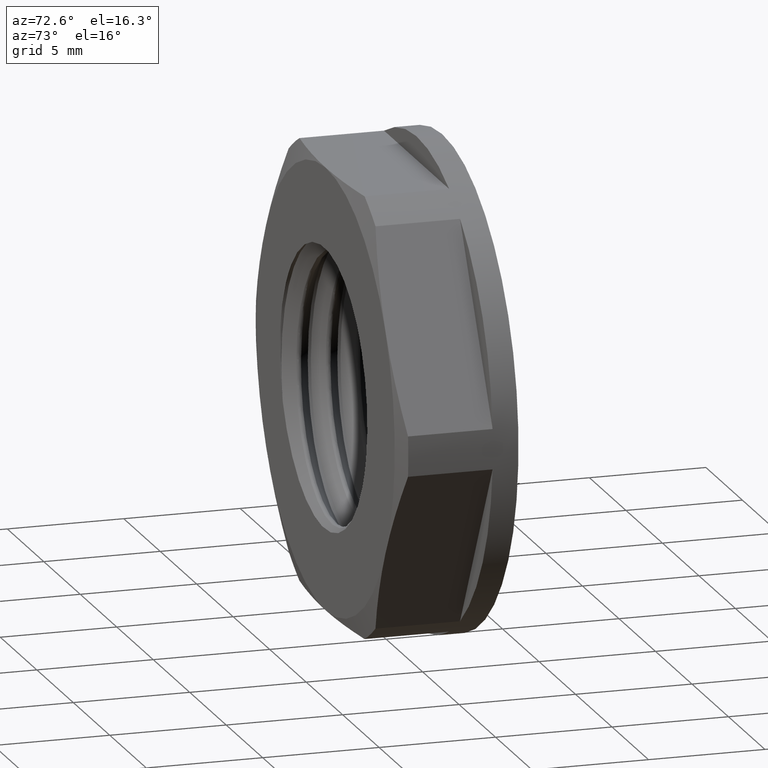
[diagram: clean part render]
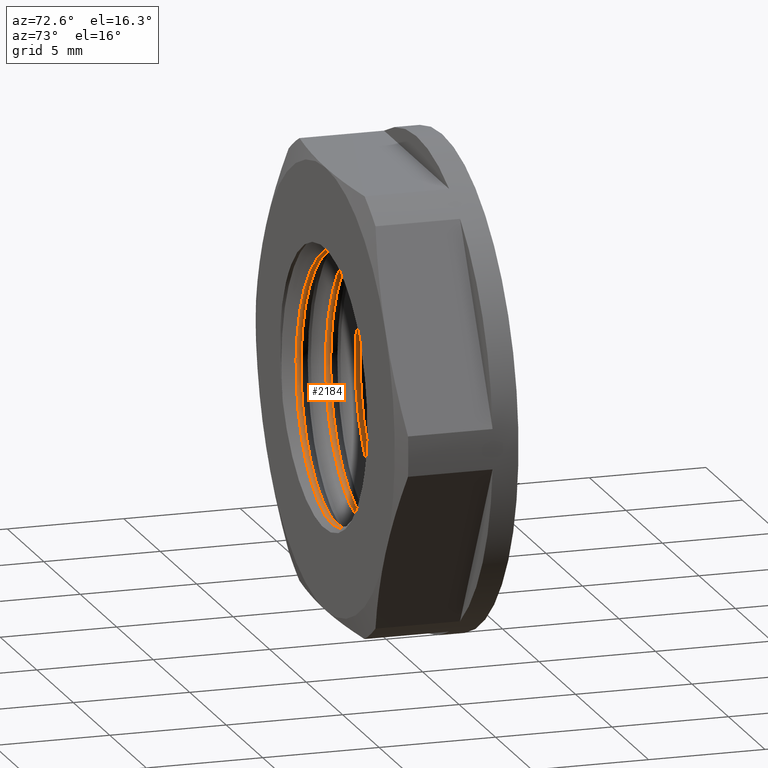
[diagram: same view with one face highlighted and labeled with its STEP entity id]
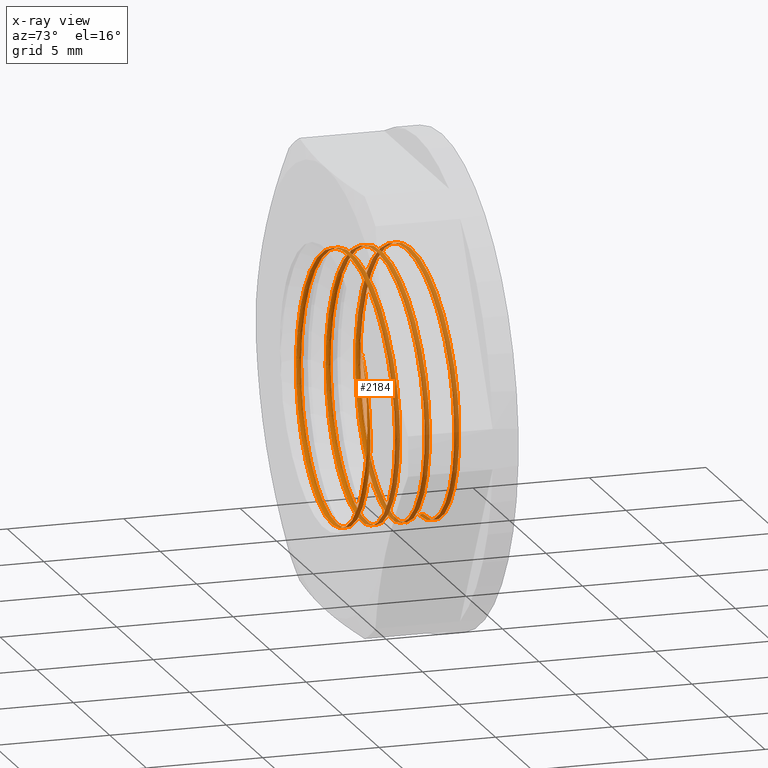
[diagram: x-ray of the same camera — body ghosted, the highlighted face saturated]
A machine part, auxiliary view. The second image highlights one B-rep face of the part: STEP entity #2184.
The next image is the same camera in x-ray: the body ghosted, the highlighted face saturated — about 57% of this face is hidden behind the body in this view.
In plain terms, the highlighted face is a freeform B-spline surface patch.
Its self-contained STEP definition (entity closure, byte-faithful):
#7 = CARTESIAN_POINT ( 'NONE',  ( 6.941444292451469532E-16, 3.319334072139365155, 5.668119409844843304 ) ) ;
#16 = CARTESIAN_POINT ( 'NONE',  ( -5.668119409844837975, 0.5412090721393689741, 2.347811932707918992 ) ) ;
#18 = CARTESIAN_POINT ( 'NONE',  ( 2.377589880243087261, 2.282878371188592492, 5.740009734643887640 ) ) ;
#29 = CARTESIAN_POINT ( 'NONE',  ( -4.007965671276383368, 0.6205840721393671711, 4.007965671276383368 ) ) ;
#31 = CARTESIAN_POINT ( 'NONE',  ( -5.017655903764298486, -0.5509438449104669955, 2.787622819756260917 ) ) ;
#33 = CARTESIAN_POINT ( 'NONE',  ( 5.149680798113544178, 2.410000000000000142, 2.537130995959368640 ) ) ;
#40 = CARTESIAN_POINT ( 'NONE',  ( -2.347811932707918992, -0.5700409278606315411, 5.668119409844845968 ) ) ;
#44 = CARTESIAN_POINT ( 'NONE',  ( 5.740009734643887640, 1.330378371188590148, -2.377589880243087261 ) ) ;
#49 = CARTESIAN_POINT ( 'NONE',  ( 5.740009734643887640, -0.1541140728847225083, -2.377589880243087261 ) ) ;
#52 = CARTESIAN_POINT ( 'NONE',  ( -2.347811932707918992, 1.969959072139367606, 5.668119409844845968 ) ) ;
#56 = CARTESIAN_POINT ( 'NONE',  ( 5.740009734643890305, 2.521003371188590414, -3.514742274303144908E-16 ) ) ;
#63 = CARTESIAN_POINT ( 'NONE',  ( -4.058799807443485008, 4.370260927115279692, 4.058799807443490337 ) ) ;
#67 = CARTESIAN_POINT ( 'NONE',  ( 0.0000000000000000000, 0.2985033711885889951, -5.740009734643890305 ) ) ;
#68 = CARTESIAN_POINT ( 'NONE',  ( 5.608852697494989492, 2.409999999999997922, 1.096897368471707601 ) ) ;
#72 = CARTESIAN_POINT ( 'NONE',  ( -4.058799807443490337, 4.052760927115279799, -4.058799807443485008 ) ) ;
#75 = CARTESIAN_POINT ( 'NONE',  ( -4.007965671276383368, 5.794430226164501541, 4.007965671276383368 ) ) ;
#82 = CARTESIAN_POINT ( 'NONE',  ( 5.740009734643887640, 0.9571359271152788395, 2.377589880243087261 ) ) ;
#85 = CARTESIAN_POINT ( 'NONE',  ( -2.347811932707918992, 2.063805226164497686, 5.668119409844845968 ) ) ;
#86 = CARTESIAN_POINT ( 'NONE',  ( 4.058799807443485008, 3.949753371188589490, -4.058799807443490337 ) ) ;
#93 =( BOUNDED_SURFACE ( )  B_SPLINE_SURFACE ( 3, 2, ( 
 ( #2214, #1321, #795, #178, #858, #1669, #692, #1369, #1204, #1659, #1887, #128, #482, #634, #1633, #1837, #102, #314, #781, #1468, #987, #2150, #290, #114, #1480, #1310, #2047, #166, #848, #1996, #472, #683, #1358, #522, #1192, #736, #1720, #1218, #1036, #228, #392, #1254, #914, #1756, #216, #702, #369, #892, #1921, #1731, #2079, #190, #56, #867, #557, #18, #1382, #1421, #1574, #1900, #747, #2103, #381, #903, #1059, #1083, #579, #44, #1048, #1432, #1933, #203, #1586, #1744, #1766, #413, #712, #241, #724, #1597, #67, #879, #2068, #2113, #1407, #1396, #589, #1550, #1265, #1563, #1231, #401, #31 ),
 ( #544, #1911, #2090, #566, #1070, #1240, #441, #107, #296, #800, #75, #1463, #617, #250, #464, #2122, #2154, #1486, #640, #1987, #1472, #787, #1135, #1123, #1820, #970, #777, #927, #1274, #1653, #1303, #1094, #1779, #1946, #629, #1974, #1788, #1103, #423, #118, #259, #281, #1797, #937, #2165, #1606, #450, #757, #1441, #598, #609, #1956, #1114, #1284, #1617, #432, #2143, #85, #272, #766, #1452, #1292, #2132, #1964, #947, #1628, #97, #1807, #959, #1638, #811, #475, #990, #677, #2001, #150, #1693, #1147, #2178, #1831, #1178, #1335, #2210, #1871, #508, #1166, #1663, #1315, #1850, #667, #486, #821, #307 ),
 ( #979, #130, #161, #1496, #831, #648, #1683, #1325, #174, #2012, #1157, #1517, #1839, #350, #2043, #316, #1673, #139, #327, #1507, #1000, #1345, #518, #2199, #2187, #2031, #1860, #656, #2021, #1021, #495, #854, #339, #1010, #841, #1527, #1354, #1187, #1705, #1536, #7, #530, #553, #1237, #688, #1416, #1226, #2054, #237, #876, #1593, #1895, #1392, #888, #1739, #710, #1365, #52, #1250, #186, #410, #2099, #1080, #1763, #1929, #1716, #1214, #2077, #1559, #1199, #378, #1907, #398, #1569, #29, #16, #213, #910, #900, #388, #1883, #576, #1045, #365, #700, #1055, #1033, #865, #1729, #40, #1548, #721, #1402 ),
 ( #2085, #1378, #2065, #542, #563, #200, #1917, #1067, #1752, #1583, #225, #733, #606, #1289, #1120, #1091, #1111, #956, #1773, #1636, #626, #461, #784, #1985, #1280, #269, #63, #744, #1794, #1301, #72, #586, #256, #1943, #2119, #1470, #104, #774, #2152, #1133, #1818, #933, #293, #1449, #1614, #1952, #968, #944, #1429, #2128, #2110, #1261, #1625, #420, #247, #923, #595, #1603, #1804, #763, #94, #754, #1438, #428, #1271, #1100, #1460, #447, #1784, #82, #1961, #2138, #437, #614, #1971, #278, #798, #1650, #116, #1483, #2163, #637, #407, #49, #1279, #730, #1772, #1247, #1926, #436, #2118, #233, #1970 ) ),
 .UNSPECIFIED., .F., .F., .F. ) 
 B_SPLINE_SURFACE_WITH_KNOTS ( ( 4, 4 ),
 ( 3, 2, 2, 2, 2, 2, 2, 2, 2, 2, 2, 2, 2, 2, 2, 2, 2, 2, 2, 2, 2, 2, 2, 2, 2, 2, 2, 2, 2, 2, 2, 2, 2, 2, 2, 2, 2, 2, 2, 2, 2, 2, 2, 2, 2, 2, 3 ),
 ( 0.0000000000000000000, 1.000000000000000000 ),
 ( 0.0000000000000000000, 0.02083333333333334952, 0.04166666666666665048, 0.06250000000000000000, 0.08333333333333330095, 0.1041666666666666019, 0.1250000000000000000, 0.1458333333333333981, 0.1666666666666665186, 0.1875000000000000000, 0.2083333333333335091, 0.2291666666666664909, 0.2500000000000000000, 0.2708333333333335369, 0.2916666666666665186, 0.3125000000000000000, 0.3333333333333335369, 0.3541666666666665186, 0.3750000000000000000, 0.3958333333333335369, 0.4166666666666665186, 0.4375000000000000000, 0.4583333333333329818, 0.4791666666666670182, 0.5000000000000000000, 0.5208333333333330373, 0.5416666666666670737, 0.5625000000000000000, 0.5833333333333330373, 0.6041666666666670737, 0.6250000000000000000, 0.6458333333333330373, 0.6666666666666670737, 0.6875000000000000000, 0.7083333333333330373, 0.7291666666666670737, 0.7500000000000000000, 0.7708333333333330373, 0.7916666666666670737, 0.8125000000000000000, 0.8333333333333330373, 0.8541666666666670737, 0.8750000000000000000, 0.8958333333333330373, 0.9166666666666670737, 0.9375000000000000000, 0.9449178093676989798 ),
 .UNSPECIFIED. ) 
 GEOMETRIC_REPRESENTATION_ITEM ( )  RATIONAL_B_SPLINE_SURFACE ( (
 ( 1.000000000000000000, 0.9238795325112869605, 1.000000000000000000, 0.9238795325112869605, 1.000000000000000000, 0.9238795325112869605, 1.000000000000000000, 0.9238795325112869605, 1.000000000000000000, 0.9238795325112869605, 1.000000000000000000, 0.9238795325112869605, 1.000000000000000000, 0.9238795325112869605, 1.000000000000000000, 0.9238795325112869605, 1.000000000000000000, 0.9238795325112869605, 1.000000000000000000, 0.9238795325112869605, 1.000000000000000000, 0.9238795325112869605, 1.000000000000000000, 0.9238795325112869605, 1.000000000000000000, 0.9238795325112869605, 1.000000000000000000, 0.9238795325112869605, 1.000000000000000000, 0.9238795325112869605, 1.000000000000000000, 0.9238795325112869605, 1.000000000000000000, 0.9238795325112869605, 1.000000000000000000, 0.9238795325112869605, 1.000000000000000000, 0.9238795325112869605, 1.000000000000000000, 0.9238795325112869605, 1.000000000000000000, 0.9238795325112869605, 1.000000000000000000, 0.9238795325112869605, 1.000000000000000000, 0.9238795325112869605, 1.000000000000000000, 0.9238795325112869605, 1.000000000000000000, 0.9238795325112869605, 1.000000000000000000, 0.9238795325112869605, 1.000000000000000000, 0.9238795325112869605, 1.000000000000000000, 0.9238795325112869605, 1.000000000000000000, 0.9238795325112869605, 1.000000000000000000, 0.9238795325112869605, 1.000000000000000000, 0.9238795325112869605, 1.000000000000000000, 0.9238795325112869605, 1.000000000000000000, 0.9238795325112869605, 1.000000000000000000, 0.9238795325112869605, 1.000000000000000000, 0.9238795325112869605, 1.000000000000000000, 0.9238795325112869605, 1.000000000000000000, 0.9238795325112869605, 1.000000000000000000, 0.9238795325112869605, 1.000000000000000000, 0.9238795325112869605, 1.000000000000000000, 0.9238795325112869605, 1.000000000000000000, 0.9238795325112869605, 1.000000000000000000, 0.9238795325112869605, 1.000000000000000000, 0.9238795325112869605, 1.000000000000000000, 0.9238795325112869605, 1.000000000000000000, 0.9238795325112869605, 1.000000000000000000, 0.9728969383930510251, 0.9650942298371130157),
 ( 0.7618584064576909842, 0.7038653883979260062, 0.7618584064576909842, 0.7038653883979260062, 0.7618584064576909842, 0.7038653883979260062, 0.7618584064576909842, 0.7038653883979260062, 0.7618584064576909842, 0.7038653883979260062, 0.7618584064576909842, 0.7038653883979260062, 0.7618584064576909842, 0.7038653883979260062, 0.7618584064576909842, 0.7038653883979260062, 0.7618584064576909842, 0.7038653883979260062, 0.7618584064576909842, 0.7038653883979260062, 0.7618584064576909842, 0.7038653883979260062, 0.7618584064576909842, 0.7038653883979260062, 0.7618584064576909842, 0.7038653883979260062, 0.7618584064576909842, 0.7038653883979260062, 0.7618584064576909842, 0.7038653883979260062, 0.7618584064576909842, 0.7038653883979260062, 0.7618584064576909842, 0.7038653883979260062, 0.7618584064576909842, 0.7038653883979260062, 0.7618584064576909842, 0.7038653883979260062, 0.7618584064576909842, 0.7038653883979260062, 0.7618584064576909842, 0.7038653883979260062, 0.7618584064576909842, 0.7038653883979260062, 0.7618584064576909842, 0.7038653883979260062, 0.7618584064576909842, 0.7038653883979260062, 0.7618584064576909842, 0.7038653883979260062, 0.7618584064576909842, 0.7038653883979260062, 0.7618584064576909842, 0.7038653883979260062, 0.7618584064576909842, 0.7038653883979260062, 0.7618584064576909842, 0.7038653883979260062, 0.7618584064576909842, 0.7038653883979260062, 0.7618584064576909842, 0.7038653883979260062, 0.7618584064576909842, 0.7038653883979260062, 0.7618584064576909842, 0.7038653883979260062, 0.7618584064576909842, 0.7038653883979260062, 0.7618584064576909842, 0.7038653883979260062, 0.7618584064576909842, 0.7038653883979260062, 0.7618584064576909842, 0.7038653883979260062, 0.7618584064576909842, 0.7038653883979260062, 0.7618584064576909842, 0.7038653883979260062, 0.7618584064576909842, 0.7038653883979260062, 0.7618584064576909842, 0.7038653883979260062, 0.7618584064576909842, 0.7038653883979260062, 0.7618584064576909842, 0.7038653883979260062, 0.7618584064576909842, 0.7038653883979260062, 0.7618584064576909842, 0.7038653883979260062, 0.7618584064576909842, 0.7412097111316969800, 0.7352651520252160289),
 ( 0.7618584064576909842, 0.7038653883979260062, 0.7618584064576909842, 0.7038653883979260062, 0.7618584064576909842, 0.7038653883979260062, 0.7618584064576909842, 0.7038653883979260062, 0.7618584064576909842, 0.7038653883979260062, 0.7618584064576909842, 0.7038653883979260062, 0.7618584064576909842, 0.7038653883979260062, 0.7618584064576909842, 0.7038653883979260062, 0.7618584064576909842, 0.7038653883979260062, 0.7618584064576909842, 0.7038653883979260062, 0.7618584064576909842, 0.7038653883979260062, 0.7618584064576909842, 0.7038653883979260062, 0.7618584064576909842, 0.7038653883979260062, 0.7618584064576909842, 0.7038653883979260062, 0.7618584064576909842, 0.7038653883979260062, 0.7618584064576909842, 0.7038653883979260062, 0.7618584064576909842, 0.7038653883979260062, 0.7618584064576909842, 0.7038653883979260062, 0.7618584064576909842, 0.7038653883979260062, 0.7618584064576909842, 0.7038653883979260062, 0.7618584064576909842, 0.7038653883979260062, 0.7618584064576909842, 0.7038653883979260062, 0.7618584064576909842, 0.7038653883979260062, 0.7618584064576909842, 0.7038653883979260062, 0.7618584064576909842, 0.7038653883979260062, 0.7618584064576909842, 0.7038653883979260062, 0.7618584064576909842, 0.7038653883979260062, 0.7618584064576909842, 0.7038653883979260062, 0.7618584064576909842, 0.7038653883979260062, 0.7618584064576909842, 0.7038653883979260062, 0.7618584064576909842, 0.7038653883979260062, 0.7618584064576909842, 0.7038653883979260062, 0.7618584064576909842, 0.7038653883979260062, 0.7618584064576909842, 0.7038653883979260062, 0.7618584064576909842, 0.7038653883979260062, 0.7618584064576909842, 0.7038653883979260062, 0.7618584064576909842, 0.7038653883979260062, 0.7618584064576909842, 0.7038653883979260062, 0.7618584064576909842, 0.7038653883979260062, 0.7618584064576909842, 0.7038653883979260062, 0.7618584064576909842, 0.7038653883979260062, 0.7618584064576909842, 0.7038653883979260062, 0.7618584064576909842, 0.7038653883979260062, 0.7618584064576909842, 0.7038653883979260062, 0.7618584064576909842, 0.7038653883979260062, 0.7618584064576909842, 0.7412097111316969800, 0.7352651520252160289),
 ( 1.000000000000000000, 0.9238795325112869605, 1.000000000000000000, 0.9238795325112869605, 1.000000000000000000, 0.9238795325112869605, 1.000000000000000000, 0.9238795325112869605, 1.000000000000000000, 0.9238795325112869605, 1.000000000000000000, 0.9238795325112869605, 1.000000000000000000, 0.9238795325112869605, 1.000000000000000000, 0.9238795325112869605, 1.000000000000000000, 0.9238795325112869605, 1.000000000000000000, 0.9238795325112869605, 1.000000000000000000, 0.9238795325112869605, 1.000000000000000000, 0.9238795325112869605, 1.000000000000000000, 0.9238795325112869605, 1.000000000000000000, 0.9238795325112869605, 1.000000000000000000, 0.9238795325112869605, 1.000000000000000000, 0.9238795325112869605, 1.000000000000000000, 0.9238795325112869605, 1.000000000000000000, 0.9238795325112869605, 1.000000000000000000, 0.9238795325112869605, 1.000000000000000000, 0.9238795325112869605, 1.000000000000000000, 0.9238795325112869605, 1.000000000000000000, 0.9238795325112869605, 1.000000000000000000, 0.9238795325112869605, 1.000000000000000000, 0.9238795325112869605, 1.000000000000000000, 0.9238795325112869605, 1.000000000000000000, 0.9238795325112869605, 1.000000000000000000, 0.9238795325112869605, 1.000000000000000000, 0.9238795325112869605, 1.000000000000000000, 0.9238795325112869605, 1.000000000000000000, 0.9238795325112869605, 1.000000000000000000, 0.9238795325112869605, 1.000000000000000000, 0.9238795325112869605, 1.000000000000000000, 0.9238795325112869605, 1.000000000000000000, 0.9238795325112869605, 1.000000000000000000, 0.9238795325112869605, 1.000000000000000000, 0.9238795325112869605, 1.000000000000000000, 0.9238795325112869605, 1.000000000000000000, 0.9238795325112869605, 1.000000000000000000, 0.9238795325112869605, 1.000000000000000000, 0.9238795325112869605, 1.000000000000000000, 0.9238795325112869605, 1.000000000000000000, 0.9238795325112869605, 1.000000000000000000, 0.9238795325112869605, 1.000000000000000000, 0.9238795325112869605, 1.000000000000000000, 0.9238795325112869605, 1.000000000000000000, 0.9728969383930510251, 0.9650942298371130157) ) ) 
 REPRESENTATION_ITEM ( '' )  SURFACE ( )  );
#94 = CARTESIAN_POINT ( 'NONE',  ( -5.740009734643890305, 1.671510927115279932, 1.054422682290941796E-15 ) ) ;
#97 = CARTESIAN_POINT ( 'NONE',  ( 4.007965671276383368, 1.349430226164503255, -4.007965671276383368 ) ) ;
#98 = CARTESIAN_POINT ( 'NONE',  ( 4.058799807443490337, 6.172253371188590521, 4.058799807443485008 ) ) ;
#102 = CARTESIAN_POINT ( 'NONE',  ( 0.0000000000000000000, 5.378503371188590343, -5.740009734643890305 ) ) ;
#104 = CARTESIAN_POINT ( 'NONE',  ( 5.740009734643890305, 3.576510927115275074, -3.514742274303144908E-16 ) ) ;
#107 = CARTESIAN_POINT ( 'NONE',  ( 2.347811932707918992, 6.032555226164493689, 5.668119409844837975 ) ) ;
#109 = CARTESIAN_POINT ( 'NONE',  ( -2.377589880243087261, 3.394128371188589899, 5.740009734643887640 ) ) ;
#112 = CARTESIAN_POINT ( 'NONE',  ( 4.058799807443485008, 6.275260927115279941, -4.058799807443490337 ) ) ;
#114 = CARTESIAN_POINT ( 'NONE',  ( 2.377589880243087261, 4.822878371188587643, 5.740009734643887640 ) ) ;
#116 = CARTESIAN_POINT ( 'NONE',  ( -4.058799807443490337, 0.2427609271152769976, -4.058799807443485008 ) ) ;
#118 = CARTESIAN_POINT ( 'NONE',  ( 2.347811932707918992, 3.492555226164497206, 5.668119409844837975 ) ) ;
#126 = CARTESIAN_POINT ( 'NONE',  ( 5.740009734643887640, 4.925885927115277951, -2.377589880243087261 ) ) ;
#128 = CARTESIAN_POINT ( 'NONE',  ( -5.740009734643887640, 5.775378371188589099, 2.377589880243092590 ) ) ;
#130 = CARTESIAN_POINT ( 'NONE',  ( 2.347811932707918992, 6.414959072139360785, -5.668119409844837975 ) ) ;
#132 = CARTESIAN_POINT ( 'NONE',  ( 5.740009734643887640, 3.870378371188589295, -2.377589880243087261 ) ) ;
#139 = CARTESIAN_POINT ( 'NONE',  ( 2.347811932707918992, 5.144959072139361211, -5.668119409844837975 ) ) ;
#143 = CARTESIAN_POINT ( 'NONE',  ( -5.740009734643890305, 4.211510927115274860, 1.054422682290941796E-15 ) ) ;
#150 = CARTESIAN_POINT ( 'NONE',  ( -5.668119409844837975, 0.6350552261645027174, 2.347811932707918992 ) ) ;
#161 = CARTESIAN_POINT ( 'NONE',  ( 4.007965671276383368, 6.335584072139369916, -4.007965671276383368 ) ) ;
#166 = CARTESIAN_POINT ( 'NONE',  ( -5.740009734643887640, 4.505378371188593079, 2.377589880243092590 ) ) ;
#174 = CARTESIAN_POINT ( 'NONE',  ( 6.941444292451469532E-16, 5.859334072139371408, 5.668119409844843304 ) ) ;
#178 = CARTESIAN_POINT ( 'NONE',  ( 5.740009734643887640, 6.410378371188589774, -2.377589880243087261 ) ) ;
#186 = CARTESIAN_POINT ( 'NONE',  ( -5.668119409844837975, 1.811209072139363219, 2.347811932707918992 ) ) ;
#190 = CARTESIAN_POINT ( 'NONE',  ( 5.740009734643887640, 2.600378371188594162, -2.377589880243087261 ) ) ;
#200 = CARTESIAN_POINT ( 'NONE',  ( 5.740009734643887640, 6.037135927115281575, 2.377589880243087261 ) ) ;
#203 = CARTESIAN_POINT ( 'NONE',  ( 2.377589880243087261, 1.012878371188590920, 5.740009734643887640 ) ) ;
#213 = CARTESIAN_POINT ( 'NONE',  ( -5.668119409844843304, 0.4618340721393676684, 1.041216643867720726E-15 ) ) ;
#216 = CARTESIAN_POINT ( 'NONE',  ( -5.740009734643890305, 3.156003371188589757, 1.054422682290941796E-15 ) ) ;
#217 = CARTESIAN_POINT ( 'NONE',  ( 5.226818545764534640, 2.410000000000036557, -2.340424639353290814 ) ) ;
#225 = CARTESIAN_POINT ( 'NONE',  ( -4.058799807443485008, 5.640260927115280154, 4.058799807443490337 ) ) ;
#228 = CARTESIAN_POINT ( 'NONE',  ( 2.377589880243087261, 3.552878371188588069, 5.740009734643887640 ) ) ;
#233 = CARTESIAN_POINT ( 'NONE',  ( -4.627243380244770776, -0.7365770113605215608, 3.490356234642217004 ) ) ;
#237 = CARTESIAN_POINT ( 'NONE',  ( 0.0000000000000000000, 2.684334072139369809, -5.668119409844843304 ) ) ;
#241 = CARTESIAN_POINT ( 'NONE',  ( -5.740009734643887640, 0.5366283711885923013, -2.377589880243087261 ) ) ;
#247 = CARTESIAN_POINT ( 'NONE',  ( 4.058799807443490337, 2.147760927115275109, 4.058799807443485008 ) ) ;
#250 = CARTESIAN_POINT ( 'NONE',  ( -5.668119409844837975, 5.556305226164496958, -2.347811932707918992 ) ) ;
#256 = CARTESIAN_POINT ( 'NONE',  ( 0.0000000000000000000, 3.894010927115274967, -5.740009734643890305 ) ) ;
#259 = CARTESIAN_POINT ( 'NONE',  ( 6.941444292451469532E-16, 3.413180226164503672, 5.668119409844843304 ) ) ;
#261 = CARTESIAN_POINT ( 'NONE',  ( 7.029484548606289816E-16, 4.743503371188589668, 5.740009734643890305 ) ) ;
#262 = EDGE_CURVE ( 'NONE', #945, #270, #1935, .T. ) ;
#269 = CARTESIAN_POINT ( 'NONE',  ( -2.377589880243087261, 4.449635927115278555, 5.740009734643887640 ) ) ;
#270 = VERTEX_POINT ( 'NONE', #1737 ) ;
#272 = CARTESIAN_POINT ( 'NONE',  ( -4.007965671276383368, 1.984430226164504818, 4.007965671276383368 ) ) ;
#273 = CARTESIAN_POINT ( 'NONE',  ( -2.377589880243092590, 2.917878371188590503, -5.740009734643887640 ) ) ;
#278 = CARTESIAN_POINT ( 'NONE',  ( -5.740009734643887640, 0.4808859271152782222, 2.377589880243092590 ) ) ;
#281 = CARTESIAN_POINT ( 'NONE',  ( -2.347811932707918992, 3.333805226164497704, 5.668119409844845968 ) ) ;
#284 = CARTESIAN_POINT ( 'NONE',  ( 2.377589880243087261, 6.092878371188594322, 5.740009734643887640 ) ) ;
#290 = CARTESIAN_POINT ( 'NONE',  ( 4.058799807443490337, 4.902253371188590059, 4.058799807443485008 ) ) ;
#293 = CARTESIAN_POINT ( 'NONE',  ( -4.058799807443485008, 3.100260927115280118, 4.058799807443490337 ) ) ;
#294 = ORIENTED_EDGE ( 'NONE', *, *, #1145, .F. ) ;
#296 = CARTESIAN_POINT ( 'NONE',  ( 6.941444292451469532E-16, 5.953180226164496602, 5.668119409844843304 ) ) ;
#298 = CARTESIAN_POINT ( 'NONE',  ( 5.740009734643890305, 5.061003371188589561, -3.514742274303144908E-16 ) ) ;
#300 = ORIENTED_EDGE ( 'NONE', *, *, #2010, .T. ) ;
#301 = CARTESIAN_POINT ( 'NONE',  ( -4.058799807443490337, 5.322760927115279372, -4.058799807443485008 ) ) ;
#307 = CARTESIAN_POINT ( 'NONE',  ( -4.954812645768705615, -0.6112669899345551938, 2.752709445181304559 ) ) ;
#309 = CARTESIAN_POINT ( 'NONE',  ( 4.058799807443490337, 4.902253371188590059, 4.058799807443485008 ) ) ;
#310 = CARTESIAN_POINT ( 'NONE',  ( 0.0000000000000000000, 6.648503371188589917, -5.740009734643890305 ) ) ;
#311 = CARTESIAN_POINT ( 'NONE',  ( -5.740009734643887640, 5.402135927115277347, -2.377589880243087261 ) ) ;
#314 = CARTESIAN_POINT ( 'NONE',  ( 2.377589880243087261, 5.299128371188589703, -5.740009734643887640 ) ) ;
#316 = CARTESIAN_POINT ( 'NONE',  ( -2.347811932707918992, 5.303709072139360714, -5.668119409844837975 ) ) ;
#322 = CARTESIAN_POINT ( 'NONE',  ( 0.0000000000000000000, 3.894010927115274967, -5.740009734643890305 ) ) ;
#327 = CARTESIAN_POINT ( 'NONE',  ( 4.007965671276383368, 5.065584072139367677, -4.007965671276383368 ) ) ;
#339 = CARTESIAN_POINT ( 'NONE',  ( 0.0000000000000000000, 3.954334072139366718, -5.668119409844843304 ) ) ;
#350 = CARTESIAN_POINT ( 'NONE',  ( -5.668119409844837975, 5.462459072139366434, -2.347811932707918992 ) ) ;
#365 = CARTESIAN_POINT ( 'NONE',  ( 5.668119409844837975, -0.09379092786063099318, -2.347811932707918992 ) ) ;
#368 = CARTESIAN_POINT ( 'NONE',  ( -4.058799807443490337, 2.782760927115279781, -4.058799807443485008 ) ) ;
#369 = CARTESIAN_POINT ( 'NONE',  ( -4.058799807443490337, 2.997253371188589810, -4.058799807443485008 ) ) ;
#378 = CARTESIAN_POINT ( 'NONE',  ( 4.007965671276383368, 0.9380840721393672865, 4.007965671276383368 ) ) ;
#381 = CARTESIAN_POINT ( 'NONE',  ( -4.058799807443490337, 1.727253371188590014, -4.058799807443485008 ) ) ;
#388 = CARTESIAN_POINT ( 'NONE',  ( -2.347811932707918992, 0.2237090721393652226, -5.668119409844837975 ) ) ;
#392 = CARTESIAN_POINT ( 'NONE',  ( 7.029484548606289816E-16, 3.473503371188590094, 5.740009734643890305 ) ) ;
#393 = CARTESIAN_POINT ( 'NONE',  ( 5.586060005029064079, 2.409999999999997922, -1.144609402685266009 ) ) ;
#398 = CARTESIAN_POINT ( 'NONE',  ( 6.941444292451469532E-16, 0.7793340721393678949, 5.668119409844843304 ) ) ;
#401 = CARTESIAN_POINT ( 'NONE',  ( -4.627243380244770776, -0.5220845672872085341, 3.490356234642217004 ) ) ;
#406 = CARTESIAN_POINT ( 'NONE',  ( 0.0000000000000000000, 6.434010927115280332, -5.740009734643890305 ) ) ;
#407 = CARTESIAN_POINT ( 'NONE',  ( 4.058799807443485008, -0.07473907288472329824, -4.058799807443490337 ) ) ;
#410 = CARTESIAN_POINT ( 'NONE',  ( -5.668119409844843304, 1.731834072139367020, 1.041216643867720726E-15 ) ) ;
#413 = CARTESIAN_POINT ( 'NONE',  ( -5.740009734643887640, 0.6953783711885913599, 2.377589880243092590 ) ) ;
#420 = CARTESIAN_POINT ( 'NONE',  ( 5.740009734643887640, 2.227135927115277969, 2.377589880243087261 ) ) ;
#423 = CARTESIAN_POINT ( 'NONE',  ( 4.007965671276383368, 3.571930226164499178, 4.007965671276383368 ) ) ;
#424 = CARTESIAN_POINT ( 'NONE',  ( 5.682242973111762296, 2.410000000000074305, -0.4001371344266840824 ) ) ;
#428 = CARTESIAN_POINT ( 'NONE',  ( -2.377589880243092590, 1.433385927115277125, -5.740009734643887640 ) ) ;
#432 = CARTESIAN_POINT ( 'NONE',  ( 2.347811932707918992, 2.222555226164498077, 5.668119409844837975 ) ) ;
#436 = CARTESIAN_POINT ( 'NONE',  ( -2.377589880243087261, -0.6303640728847234032, 5.740009734643887640 ) ) ;
#437 = CARTESIAN_POINT ( 'NONE',  ( 7.029484548606289816E-16, 0.7190109271152760329, 5.740009734643890305 ) ) ;
#441 = CARTESIAN_POINT ( 'NONE',  ( 4.007965671276383368, 6.111930226164498769, 4.007965671276383368 ) ) ;
#442 = CARTESIAN_POINT ( 'NONE',  ( 5.740009734643887640, 6.410378371188590663, -2.377589880243087261 ) ) ;
#447 = CARTESIAN_POINT ( 'NONE',  ( 5.740009734643887640, 1.115885927115279008, -2.377589880243087261 ) ) ;
#450 = CARTESIAN_POINT ( 'NONE',  ( -4.007965671276383368, 2.936930226164503832, -4.007965671276383368 ) ) ;
#455 = CARTESIAN_POINT ( 'NONE',  ( 4.058799807443485008, 5.005260927115279479, -4.058799807443490337 ) ) ;
#461 = CARTESIAN_POINT ( 'NONE',  ( 5.740009734643887640, 4.767135927115274008, 2.377589880243087261 ) ) ;
#464 = CARTESIAN_POINT ( 'NONE',  ( -4.007965671276383368, 5.476930226164503424, -4.007965671276383368 ) ) ;
#467 = CARTESIAN_POINT ( 'NONE',  ( 5.740009734643887640, 6.251628371188586719, 2.377589880243087261 ) ) ;
#469 = EDGE_LOOP ( 'NONE', ( #1664, #294, #887, #300 ) ) ;
#472 = CARTESIAN_POINT ( 'NONE',  ( -4.058799807443490337, 4.267253371188589384, -4.058799807443485008 ) ) ;
#475 = CARTESIAN_POINT ( 'NONE',  ( 2.347811932707918992, 0.9525552261645013896, 5.668119409844837975 ) ) ;
#477 = CARTESIAN_POINT ( 'NONE',  ( -4.058799807443485008, 5.854753371188589739, 4.058799807443490337 ) ) ;
#479 = CARTESIAN_POINT ( 'NONE',  ( -4.058799807443485008, 4.370260927115279692, 4.058799807443490337 ) ) ;
#482 = CARTESIAN_POINT ( 'NONE',  ( -5.740009734643890305, 5.696003371188590236, 1.054422682290941796E-15 ) ) ;
#486 = CARTESIAN_POINT ( 'NONE',  ( -4.007965671276383368, -0.5555697738354995474, 4.007965671276383368 ) ) ;
#490 = CARTESIAN_POINT ( 'NONE',  ( -4.058799807443490337, 4.052760927115279799, -4.058799807443485008 ) ) ;
#495 = CARTESIAN_POINT ( 'NONE',  ( -4.007965671276383368, 4.113084072139368885, -4.007965671276383368 ) ) ;
#496 = VERTEX_POINT ( 'NONE', #930 ) ;
#508 = CARTESIAN_POINT ( 'NONE',  ( 5.668119409844843304, -0.07931977383549897176, -3.470722146225734766E-16 ) ) ;
#518 = CARTESIAN_POINT ( 'NONE',  ( 4.007965671276383368, 4.748084072139369560, 4.007965671276383368 ) ) ;
#522 = CARTESIAN_POINT ( 'NONE',  ( 2.377589880243087261, 4.029128371188592794, -5.740009734643887640 ) ) ;
#530 = CARTESIAN_POINT ( 'NONE',  ( -2.347811932707918992, 3.239959072139366736, 5.668119409844845968 ) ) ;
#533 = CARTESIAN_POINT ( 'NONE',  ( -5.740009734643887640, 3.020885927115279479, 2.377589880243092590 ) ) ;
#542 = CARTESIAN_POINT ( 'NONE',  ( 5.740009734643887640, 6.195885927115273084, -2.377589880243087261 ) ) ;
#544 = CARTESIAN_POINT ( 'NONE',  ( 0.0000000000000000000, 6.588180226164505271, -5.668119409844843304 ) ) ;
#553 = CARTESIAN_POINT ( 'NONE',  ( -4.007965671276383368, 3.160584072139369649, 4.007965671276383368 ) ) ;
#557 = CARTESIAN_POINT ( 'NONE',  ( 4.058799807443490337, 2.362253371188590023, 4.058799807443485008 ) ) ;
#563 = CARTESIAN_POINT ( 'NONE',  ( 5.740009734643890305, 6.116510927115279550, -3.514742274303144908E-16 ) ) ;
#566 = CARTESIAN_POINT ( 'NONE',  ( 5.668119409844837975, 6.350055226164498912, -2.347811932707918992 ) ) ;
#576 = CARTESIAN_POINT ( 'NONE',  ( 2.347811932707918992, 0.06495907213936834290, -5.668119409844837975 ) ) ;
#579 = CARTESIAN_POINT ( 'NONE',  ( 4.058799807443485008, 1.409753371188589899, -4.058799807443490337 ) ) ;
#586 = CARTESIAN_POINT ( 'NONE',  ( -2.377589880243092590, 3.973385927115279159, -5.740009734643887640 ) ) ;
#589 = CARTESIAN_POINT ( 'NONE',  ( 4.058799807443490337, -0.1777466288114104842, 4.058799807443485008 ) ) ;
#595 = CARTESIAN_POINT ( 'NONE',  ( 7.029484548606289816E-16, 1.989010927115274940, 5.740009734643890305 ) ) ;
#598 = CARTESIAN_POINT ( 'NONE',  ( 2.347811932707918992, 2.698805226164502358, -5.668119409844837975 ) ) ;
#606 = CARTESIAN_POINT ( 'NONE',  ( -5.740009734643890305, 5.481510927115279763, 1.054422682290941796E-15 ) ) ;
#609 = CARTESIAN_POINT ( 'NONE',  ( 4.007965671276383368, 2.619430226164500386, -4.007965671276383368 ) ) ;
#610 = CARTESIAN_POINT ( 'NONE',  ( 5.740009734643890305, 3.791003371188589988, -3.514742274303144908E-16 ) ) ;
#614 = CARTESIAN_POINT ( 'NONE',  ( -2.377589880243087261, 0.6396359271152772807, 5.740009734643887640 ) ) ;
#617 = CARTESIAN_POINT ( 'NONE',  ( -5.668119409844843304, 5.635680226164497597, 1.041216643867720726E-15 ) ) ;
#626 = CARTESIAN_POINT ( 'NONE',  ( 5.740009734643890305, 4.846510927115279976, -3.514742274303144908E-16 ) ) ;
#629 = CARTESIAN_POINT ( 'NONE',  ( 4.007965671276383368, 3.889430226164503068, -4.007965671276383368 ) ) ;
#631 = CARTESIAN_POINT ( 'NONE',  ( -5.740009734643887640, 3.076628371188588673, -2.377589880243087261 ) ) ;
#634 = CARTESIAN_POINT ( 'NONE',  ( -5.740009734643887640, 5.616628371188594926, -2.377589880243087261 ) ) ;
#637 = CARTESIAN_POINT ( 'NONE',  ( 2.377589880243087261, 0.004635927115277159102, -5.740009734643887640 ) ) ;
#640 = CARTESIAN_POINT ( 'NONE',  ( 4.007965671276383368, 5.159430226164499089, -4.007965671276383368 ) ) ;
#644 = CARTESIAN_POINT ( 'NONE',  ( 5.740009734643887640, 4.767135927115275784, 2.377589880243087261 ) ) ;
#648 = CARTESIAN_POINT ( 'NONE',  ( 5.668119409844837975, 6.097459072139363556, 2.347811932707918992 ) ) ;
#650 = CARTESIAN_POINT ( 'NONE',  ( -2.377589880243087261, 4.664128371188590805, 5.740009734643887640 ) ) ;
#656 = CARTESIAN_POINT ( 'NONE',  ( -5.668119409844837975, 4.351209072139366363, 2.347811932707918992 ) ) ;
#661 = CARTESIAN_POINT ( 'NONE',  ( 7.029484548606289816E-16, 4.529010927115279195, 5.740009734643890305 ) ) ;
#667 = CARTESIAN_POINT ( 'NONE',  ( -2.347811932707918992, -0.4761947738354966875, 5.668119409844845968 ) ) ;
#671 = CARTESIAN_POINT ( 'NONE',  ( -4.058799807443485008, 3.100260927115280118, 4.058799807443490337 ) ) ;
#677 = CARTESIAN_POINT ( 'NONE',  ( -2.347811932707918992, 0.7938052261645023311, 5.668119409844845968 ) ) ;
#682 = CARTESIAN_POINT ( 'NONE',  ( -2.377589880243087261, 3.179635927115276761, 5.740009734643887640 ) ) ;
#683 = CARTESIAN_POINT ( 'NONE',  ( -2.377589880243092590, 4.187878371188591409, -5.740009734643887640 ) ) ;
#688 = CARTESIAN_POINT ( 'NONE',  ( -5.668119409844843304, 3.001834072139367926, 1.041216643867720726E-15 ) ) ;
#692 = CARTESIAN_POINT ( 'NONE',  ( 4.058799807443490337, 6.172253371188590521, 4.058799807443485008 ) ) ;
#700 = CARTESIAN_POINT ( 'NONE',  ( 5.668119409844843304, -0.1731659278606328123, -3.470722146225734766E-16 ) ) ;
#702 = CARTESIAN_POINT ( 'NONE',  ( -5.740009734643887640, 3.076628371188588673, -2.377589880243087261 ) ) ;
#710 = CARTESIAN_POINT ( 'NONE',  ( 2.347811932707918992, 2.128709072139366665, 5.668119409844837975 ) ) ;
#712 = CARTESIAN_POINT ( 'NONE',  ( -5.740009734643890305, 0.6160033711885909424, 1.054422682290941796E-15 ) ) ;
#721 = CARTESIAN_POINT ( 'NONE',  ( -4.569289814848820797, -0.6762538663364279223, 3.446641527703936170 ) ) ;
#724 = CARTESIAN_POINT ( 'NONE',  ( -4.058799807443490337, 0.4572533711885899965, -4.058799807443485008 ) ) ;
#728 = CARTESIAN_POINT ( 'NONE',  ( -1.032340520966671293E-12, 6.494334072139409386, -5.668119409844844192 ) ) ;
#730 = CARTESIAN_POINT ( 'NONE',  ( 5.740009734643887640, -0.3128640728847223995, 2.377589880243087261 ) ) ;
#733 = CARTESIAN_POINT ( 'NONE',  ( -5.740009734643887640, 5.560885927115282179, 2.377589880243092590 ) ) ;
#736 = CARTESIAN_POINT ( 'NONE',  ( 5.740009734643887640, 3.870378371188589295, -2.377589880243087261 ) ) ;
#744 = CARTESIAN_POINT ( 'NONE',  ( -5.740009734643887640, 4.290885927115279941, 2.377589880243092590 ) ) ;
#747 = CARTESIAN_POINT ( 'NONE',  ( -5.740009734643890305, 1.886003371188590183, 1.054422682290941796E-15 ) ) ;
#748 = CARTESIAN_POINT ( 'NONE',  ( 5.679916794945055969, 2.409999999999953513, 0.6038358418752083345 ) ) ;
#754 = CARTESIAN_POINT ( 'NONE',  ( -5.740009734643887640, 1.592135927115276406, -2.377589880243087261 ) ) ;
#757 = CARTESIAN_POINT ( 'NONE',  ( -2.347811932707918992, 2.857555226164501416, -5.668119409844837975 ) ) ;
#763 = CARTESIAN_POINT ( 'NONE',  ( -5.740009734643887640, 1.750885927115279017, 2.377589880243092590 ) ) ;
#766 = CARTESIAN_POINT ( 'NONE',  ( -5.668119409844837975, 1.905055226164498627, 2.347811932707918992 ) ) ;
#767 = CARTESIAN_POINT ( 'NONE',  ( 7.029484548606289816E-16, 3.473503371188590094, 5.740009734643890305 ) ) ;
#774 = CARTESIAN_POINT ( 'NONE',  ( 5.740009734643887640, 3.497135927115278875, 2.377589880243087261 ) ) ;
#777 = CARTESIAN_POINT ( 'NONE',  ( -4.007965671276383368, 4.524430226164504631, 4.007965671276383368 ) ) ;
#778 = CARTESIAN_POINT ( 'NONE',  ( -5.740009734643890305, 4.426003371188589774, 1.054422682290941796E-15 ) ) ;
#781 = CARTESIAN_POINT ( 'NONE',  ( 4.058799807443485008, 5.219753371188589952, -4.058799807443490337 ) ) ;
#784 = CARTESIAN_POINT ( 'NONE',  ( 4.058799807443490337, 4.687760927115279586, 4.058799807443485008 ) ) ;
#787 = CARTESIAN_POINT ( 'NONE',  ( 5.668119409844837975, 4.921305226164493618, 2.347811932707918992 ) ) ;
#790 = CARTESIAN_POINT ( 'NONE',  ( 5.740009734643890305, 2.521003371188590414, -3.514742274303144908E-16 ) ) ;
#795 = CARTESIAN_POINT ( 'NONE',  ( 4.058799807443485008, 6.489753371188590414, -4.058799807443490337 ) ) ;
#798 = CARTESIAN_POINT ( 'NONE',  ( -5.740009734643890305, 0.4015109271152775272, 1.054422682290941796E-15 ) ) ;
#800 = CARTESIAN_POINT ( 'NONE',  ( -2.347811932707918992, 5.873805226164494186, 5.668119409844845968 ) ) ;
#806 = CARTESIAN_POINT ( 'NONE',  ( 5.740009734643890305, 4.846510927115279976, -3.514742274303144908E-16 ) ) ;
#811 = CARTESIAN_POINT ( 'NONE',  ( 4.007965671276383368, 1.031930226164501807, 4.007965671276383368 ) ) ;
#813 = CARTESIAN_POINT ( 'NONE',  ( 4.058799807443485008, 6.489753371188590414, -4.058799807443490337 ) ) ;
#821 = CARTESIAN_POINT ( 'NONE',  ( -4.569289814848820797, -0.5824077123112970655, 3.446641527703936170 ) ) ;
#825 = CARTESIAN_POINT ( 'NONE',  ( 5.740009734643890305, 3.576510927115275074, -3.514742274303144908E-16 ) ) ;
#831 = CARTESIAN_POINT ( 'NONE',  ( 5.668119409844843304, 6.176834072139368637, -3.470722146225734766E-16 ) ) ;
#835 = CARTESIAN_POINT ( 'NONE',  ( -2.377589880243087261, 5.719635927115273688, 5.740009734643887640 ) ) ;
#841 = CARTESIAN_POINT ( 'NONE',  ( 4.007965671276383368, 3.795584072139364995, -4.007965671276383368 ) ) ;
#848 = CARTESIAN_POINT ( 'NONE',  ( -5.740009734643890305, 4.426003371188589774, 1.054422682290941796E-15 ) ) ;
#854 = CARTESIAN_POINT ( 'NONE',  ( -2.347811932707918992, 4.033709072139369134, -5.668119409844837975 ) ) ;
#858 = CARTESIAN_POINT ( 'NONE',  ( 5.740009734643890305, 6.331003371188590023, -3.514742274303144908E-16 ) ) ;
#865 = CARTESIAN_POINT ( 'NONE',  ( 2.347811932707918992, -0.4112909278606318719, 5.668119409844837975 ) ) ;
#867 = CARTESIAN_POINT ( 'NONE',  ( 5.740009734643887640, 2.441628371188590219, 2.377589880243087261 ) ) ;
#876 = CARTESIAN_POINT ( 'NONE',  ( 2.347811932707918992, 2.604959072139364729, -5.668119409844837975 ) ) ;
#879 = CARTESIAN_POINT ( 'NONE',  ( 2.377589880243087261, 0.2191283711885907426, -5.740009734643887640 ) ) ;
#887 = ORIENTED_EDGE ( 'NONE', *, *, #262, .T. ) ;
#888 = CARTESIAN_POINT ( 'NONE',  ( 5.668119409844837975, 2.287459072139367056, 2.347811932707918992 ) ) ;
#892 = CARTESIAN_POINT ( 'NONE',  ( -2.377589880243092590, 2.917878371188590503, -5.740009734643887640 ) ) ;
#900 = CARTESIAN_POINT ( 'NONE',  ( -4.007965671276383368, 0.3030840721393676662, -4.007965671276383368 ) ) ;
#903 = CARTESIAN_POINT ( 'NONE',  ( -2.377589880243092590, 1.647878371188589597, -5.740009734643887640 ) ) ;
#910 = CARTESIAN_POINT ( 'NONE',  ( -5.668119409844837975, 0.3824590721393691939, -2.347811932707918992 ) ) ;
#914 = CARTESIAN_POINT ( 'NONE',  ( -4.058799807443485008, 3.314753371188590148, 4.058799807443490337 ) ) ;
#923 = CARTESIAN_POINT ( 'NONE',  ( 2.377589880243087261, 2.068385927115274914, 5.740009734643887640 ) ) ;
#927 = CARTESIAN_POINT ( 'NONE',  ( -5.668119409844837975, 4.445055226164497775, 2.347811932707918992 ) ) ;
#930 = CARTESIAN_POINT ( 'NONE',  ( 4.906106665960000335, 2.409999999999999698, 2.979568615761259753 ) ) ;
#933 = CARTESIAN_POINT ( 'NONE',  ( -2.377589880243087261, 3.179635927115276761, 5.740009734643887640 ) ) ;
#937 = CARTESIAN_POINT ( 'NONE',  ( -5.668119409844837975, 3.175055226164499089, 2.347811932707918992 ) ) ;
#938 = CARTESIAN_POINT ( 'NONE',  ( 4.058799807443490337, 3.632253371188590041, 4.058799807443485008 ) ) ;
#944 = CARTESIAN_POINT ( 'NONE',  ( -2.377589880243092590, 2.703385927115278253, -5.740009734643887640 ) ) ;
#945 = VERTEX_POINT ( 'NONE', #310 ) ;
#947 = CARTESIAN_POINT ( 'NONE',  ( 0.0000000000000000000, 1.508180226164502313, -5.668119409844843304 ) ) ;
#949 = CARTESIAN_POINT ( 'NONE',  ( 4.058799807443485008, 2.679753371188589917, -4.058799807443490337 ) ) ;
#953 = FACE_OUTER_BOUND ( 'NONE', #469, .T. ) ;
#956 = CARTESIAN_POINT ( 'NONE',  ( 2.377589880243087261, 5.084635927115280118, -5.740009734643887640 ) ) ;
#959 = CARTESIAN_POINT ( 'NONE',  ( 5.668119409844843304, 1.190680226164499977, -3.470722146225734766E-16 ) ) ;
#961 = CARTESIAN_POINT ( 'NONE',  ( -5.740009734643887640, 4.346628371188588247, -2.377589880243087261 ) ) ;
#968 = CARTESIAN_POINT ( 'NONE',  ( -4.058799807443490337, 2.782760927115279781, -4.058799807443485008 ) ) ;
#970 = CARTESIAN_POINT ( 'NONE',  ( -2.347811932707918992, 4.603805226164496389, 5.668119409844845968 ) ) ;
#974 = CARTESIAN_POINT ( 'NONE',  ( -2.377589880243092590, 5.243385927115273404, -5.740009734643887640 ) ) ;
#979 = CARTESIAN_POINT ( 'NONE',  ( 0.0000000000000000000, 6.494334072139373859, -5.668119409844843304 ) ) ;
#983 = CARTESIAN_POINT ( 'NONE',  ( 7.029484548606289816E-16, 6.013503371188590130, 5.740009734643890305 ) ) ;
#985 = CARTESIAN_POINT ( 'NONE',  ( 2.377589880243087261, 5.878385927115276743, 5.740009734643887640 ) ) ;
#987 = CARTESIAN_POINT ( 'NONE',  ( 5.740009734643890305, 5.061003371188589561, -3.514742274303144908E-16 ) ) ;
#990 = CARTESIAN_POINT ( 'NONE',  ( 6.941444292451469532E-16, 0.8731802261645010832, 5.668119409844843304 ) ) ;
#995 = CARTESIAN_POINT ( 'NONE',  ( 4.058799807443485008, 3.735260927115280349, -4.058799807443490337 ) ) ;
#1000 = CARTESIAN_POINT ( 'NONE',  ( 5.668119409844843304, 4.906834072139366398, -3.470722146225734766E-16 ) ) ;
#1010 = CARTESIAN_POINT ( 'NONE',  ( 2.347811932707918992, 3.874959072139363414, -5.668119409844837975 ) ) ;
#1014 = CARTESIAN_POINT ( 'NONE',  ( 4.622862401621406825, 2.438629827876275691, -3.494737213265568521 ) ) ;
#1018 = CARTESIAN_POINT ( 'NONE',  ( -1.032340520966671293E-12, 6.588180226164539910, -5.668119409844844192 ) ) ;
#1021 = CARTESIAN_POINT ( 'NONE',  ( -5.668119409844837975, 4.192459072139360643, -2.347811932707918992 ) ) ;
#1033 = CARTESIAN_POINT ( 'NONE',  ( 4.007965671276383368, -0.3319159278606332864, 4.007965671276383368 ) ) ;
#1035 = CARTESIAN_POINT ( 'NONE',  ( 0.0000000000000000000, 2.624010927115274949, -5.740009734643890305 ) ) ;
#1036 = CARTESIAN_POINT ( 'NONE',  ( 4.058799807443490337, 3.632253371188590041, 4.058799807443485008 ) ) ;
#1045 = CARTESIAN_POINT ( 'NONE',  ( 4.007965671276383368, -0.01441592786063057401, -4.007965671276383368 ) ) ;
#1048 = CARTESIAN_POINT ( 'NONE',  ( 5.740009734643890305, 1.251003371188589952, -3.514742274303144908E-16 ) ) ;
#1055 = CARTESIAN_POINT ( 'NONE',  ( 5.668119409844837975, -0.2525409278606328689, 2.347811932707918992 ) ) ;
#1059 = CARTESIAN_POINT ( 'NONE',  ( 0.0000000000000000000, 1.568503371188590068, -5.740009734643890305 ) ) ;
#1067 = CARTESIAN_POINT ( 'NONE',  ( 2.377589880243087261, 5.878385927115276743, 5.740009734643887640 ) ) ;
#1070 = CARTESIAN_POINT ( 'NONE',  ( 5.668119409844843304, 6.270680226164501825, -3.470722146225734766E-16 ) ) ;
#1080 = CARTESIAN_POINT ( 'NONE',  ( -4.007965671276383368, 1.573084072139367517, -4.007965671276383368 ) ) ;
#1083 = CARTESIAN_POINT ( 'NONE',  ( 2.377589880243087261, 1.489128371188591649, -5.740009734643887640 ) ) ;
#1091 = CARTESIAN_POINT ( 'NONE',  ( -2.377589880243092590, 5.243385927115273404, -5.740009734643887640 ) ) ;
#1094 = CARTESIAN_POINT ( 'NONE',  ( -2.347811932707918992, 4.127555226164498769, -5.668119409844837975 ) ) ;
#1100 = CARTESIAN_POINT ( 'NONE',  ( 2.377589880243087261, 1.274635927115275846, -5.740009734643887640 ) ) ;
#1103 = CARTESIAN_POINT ( 'NONE',  ( 5.668119409844837975, 3.651305226164502926, 2.347811932707918992 ) ) ;
#1105 = CARTESIAN_POINT ( 'NONE',  ( 5.740009734643887640, 4.981628371188592475, 2.377589880243087261 ) ) ;
#1111 = CARTESIAN_POINT ( 'NONE',  ( 0.0000000000000000000, 5.164010927115279870, -5.740009734643890305 ) ) ;
#1114 = CARTESIAN_POINT ( 'NONE',  ( 5.668119409844843304, 2.460680226164504436, -3.470722146225734766E-16 ) ) ;
#1115 = CARTESIAN_POINT ( 'NONE',  ( -4.058799807443490337, 2.997253371188589810, -4.058799807443485008 ) ) ;
#1120 = CARTESIAN_POINT ( 'NONE',  ( -4.058799807443490337, 5.322760927115279372, -4.058799807443485008 ) ) ;
#1123 = CARTESIAN_POINT ( 'NONE',  ( 2.347811932707918992, 4.762555226164495004, 5.668119409844837975 ) ) ;
#1125 = CARTESIAN_POINT ( 'NONE',  ( 2.377589880243087261, 4.029128371188592794, -5.740009734643887640 ) ) ;
#1127 = CARTESIAN_POINT ( 'NONE',  ( 2.377589880243087261, 4.608385927115276282, 5.740009734643887640 ) ) ;
#1133 = CARTESIAN_POINT ( 'NONE',  ( 2.377589880243087261, 3.338385927115275820, 5.740009734643887640 ) ) ;
#1135 = CARTESIAN_POINT ( 'NONE',  ( 4.007965671276383368, 4.841930226164501860, 4.007965671276383368 ) ) ;
#1137 = CARTESIAN_POINT ( 'NONE',  ( -5.740009734643887640, 5.616628371188594926, -2.377589880243087261 ) ) ;
#1139 = CARTESIAN_POINT ( 'NONE',  ( 5.740009734643890305, 6.116510927115279550, -3.514742274303144908E-16 ) ) ;
#1144 = EDGE_CURVE ( 'NONE', #496, #1637, #1264, .T. ) ;
#1145 = EDGE_CURVE ( 'NONE', #945, #496, #1849, .T. ) ;
#1147 = CARTESIAN_POINT ( 'NONE',  ( -5.668119409844837975, 0.4763052261645009944, -2.347811932707918992 ) ) ;
#1149 = CARTESIAN_POINT ( 'NONE',  ( 0.0000000000000000000, 2.838503371188589863, -5.740009734643890305 ) ) ;
#1151 = CARTESIAN_POINT ( 'NONE',  ( 5.740009734643887640, 6.037135927115281575, 2.377589880243087261 ) ) ;
#1157 = CARTESIAN_POINT ( 'NONE',  ( -4.007965671276383368, 5.700584072139369241, 4.007965671276383368 ) ) ;
#1161 = CARTESIAN_POINT ( 'NONE',  ( -2.377589880243092590, 3.973385927115278715, -5.740009734643887640 ) ) ;
#1166 = CARTESIAN_POINT ( 'NONE',  ( 5.668119409844837975, -0.1586947738355010684, 2.347811932707918992 ) ) ;
#1171 = CARTESIAN_POINT ( 'NONE',  ( 2.377589880243087261, 6.354635927115277028, -5.740009734643887640 ) ) ;
#1178 = CARTESIAN_POINT ( 'NONE',  ( 0.0000000000000000000, 0.2381802261645014629, -5.668119409844843304 ) ) ;
#1187 = CARTESIAN_POINT ( 'NONE',  ( 5.668119409844837975, 3.557459072139365741, 2.347811932707918992 ) ) ;
#1192 = CARTESIAN_POINT ( 'NONE',  ( 4.058799807443485008, 3.949753371188589490, -4.058799807443490337 ) ) ;
#1199 = CARTESIAN_POINT ( 'NONE',  ( 5.668119409844837975, 1.017459072139368148, 2.347811932707918992 ) ) ;
#1203 = CARTESIAN_POINT ( 'NONE',  ( -5.740009734643890305, 2.941510927115274843, 1.054422682290941796E-15 ) ) ;
#1204 = CARTESIAN_POINT ( 'NONE',  ( 7.029484548606289816E-16, 6.013503371188590130, 5.740009734643890305 ) ) ;
#1214 = CARTESIAN_POINT ( 'NONE',  ( 4.007965671276383368, 1.255584072139367402, -4.007965671276383368 ) ) ;
#1218 = CARTESIAN_POINT ( 'NONE',  ( 5.740009734643887640, 3.711628371188591569, 2.377589880243087261 ) ) ;
#1226 = CARTESIAN_POINT ( 'NONE',  ( -4.007965671276383368, 2.843084072139365759, -4.007965671276383368 ) ) ;
#1231 = CARTESIAN_POINT ( 'NONE',  ( -4.058799807443485008, -0.4952466288114110160, 4.058799807443490337 ) ) ;
#1237 = CARTESIAN_POINT ( 'NONE',  ( -5.668119409844837975, 3.081209072139369010, 2.347811932707918992 ) ) ;
#1240 = CARTESIAN_POINT ( 'NONE',  ( 5.668119409844837975, 6.191305226164500297, 2.347811932707918992 ) ) ;
#1241 = CARTESIAN_POINT ( 'NONE',  ( 0.0000000000000000000, 6.648503371188589917, -5.740009734643890305 ) ) ;
#1247 = CARTESIAN_POINT ( 'NONE',  ( 2.377589880243087261, -0.4716140728847220687, 5.740009734643887640 ) ) ;
#1250 = CARTESIAN_POINT ( 'NONE',  ( -4.007965671276383368, 1.890584072139366079, 4.007965671276383368 ) ) ;
#1254 = CARTESIAN_POINT ( 'NONE',  ( -2.377589880243087261, 3.394128371188589899, 5.740009734643887640 ) ) ;
#1261 = CARTESIAN_POINT ( 'NONE',  ( 5.740009734643887640, 2.385885927115276139, -2.377589880243087261 ) ) ;
#1264 = B_SPLINE_CURVE_WITH_KNOTS ( 'NONE', 3,
 ( #1275, #33, #1912, #68, #748, #1266, #424, #1780, #393, #1409, #1745, #217, #1575, #2091 ),
 .UNSPECIFIED., .F., .F.,
 ( 4, 2, 2, 2, 2, 2, 4 ),
 ( 2.211772431870429045E-17, 0.001514850615927962156, 0.003029701231855902194, 0.003787126539819871997, 0.004544551847783842233, 0.005301977155747811601, 0.006059402463711780970 ),
 .UNSPECIFIED. ) ;
#1265 = CARTESIAN_POINT ( 'NONE',  ( 7.029484548606289816E-16, -0.3364966288114115134, 5.740009734643890305 ) ) ;
#1266 = CARTESIAN_POINT ( 'NONE',  ( 5.693627183120960389, 2.409999999999953957, -0.1465213765221035358 ) ) ;
#1271 = CARTESIAN_POINT ( 'NONE',  ( 0.0000000000000000000, 1.354010927115276264, -5.740009734643890305 ) ) ;
#1274 = CARTESIAN_POINT ( 'NONE',  ( -5.668119409844843304, 4.365680226164502464, 1.041216643867720726E-15 ) ) ;
#1275 = CARTESIAN_POINT ( 'NONE',  ( 4.906106665960000335, 2.409999999999999698, 2.979568615761259753 ) ) ;
#1279 = CARTESIAN_POINT ( 'NONE',  ( 5.740009734643890305, -0.2334890728847225094, -3.514742274303144908E-16 ) ) ;
#1280 = CARTESIAN_POINT ( 'NONE',  ( 7.029484548606289816E-16, 4.529010927115279195, 5.740009734643890305 ) ) ;
#1284 = CARTESIAN_POINT ( 'NONE',  ( 5.668119409844837975, 2.381305226164497579, 2.347811932707918992 ) ) ;
#1285 = CARTESIAN_POINT ( 'NONE',  ( -5.740009734643890305, 3.156003371188589757, 1.054422682290941796E-15 ) ) ;
#1289 = CARTESIAN_POINT ( 'NONE',  ( -5.740009734643887640, 5.402135927115278236, -2.377589880243087261 ) ) ;
#1292 = CARTESIAN_POINT ( 'NONE',  ( -5.668119409844837975, 1.746305226164499791, -2.347811932707918992 ) ) ;
#1293 = CARTESIAN_POINT ( 'NONE',  ( -2.377589880243087261, 5.934128371188591267, 5.740009734643887640 ) ) ;
#1301 = CARTESIAN_POINT ( 'NONE',  ( -5.740009734643887640, 4.132135927115276886, -2.377589880243087261 ) ) ;
#1303 = CARTESIAN_POINT ( 'NONE',  ( -4.007965671276383368, 4.206930226164500297, -4.007965671276383368 ) ) ;
#1305 = CARTESIAN_POINT ( 'NONE',  ( -4.058799807443490337, 4.267253371188589384, -4.058799807443485008 ) ) ;
#1310 = CARTESIAN_POINT ( 'NONE',  ( -2.377589880243087261, 4.664128371188591693, 5.740009734643887640 ) ) ;
#1315 = CARTESIAN_POINT ( 'NONE',  ( 2.347811932707918992, -0.3174447738354979065, 5.668119409844837975 ) ) ;
#1319 = CARTESIAN_POINT ( 'NONE',  ( 4.058799807443490337, 4.687760927115279586, 4.058799807443485008 ) ) ;
#1321 = CARTESIAN_POINT ( 'NONE',  ( 2.377589880243087261, 6.569128371188593718, -5.740009734643887640 ) ) ;
#1325 = CARTESIAN_POINT ( 'NONE',  ( 2.347811932707918992, 5.938709072139364054, 5.668119409844837975 ) ) ;
#1327 = CARTESIAN_POINT ( 'NONE',  ( -2.377589880243092590, 5.457878371188591871, -5.740009734643887640 ) ) ;
#1329 = CARTESIAN_POINT ( 'NONE',  ( 7.029484548606289816E-16, 5.799010927115279657, 5.740009734643890305 ) ) ;
#1335 = CARTESIAN_POINT ( 'NONE',  ( 2.347811932707918992, 0.1588052261645024332, -5.668119409844837975 ) ) ;
#1339 = CARTESIAN_POINT ( 'NONE',  ( 2.377589880243087261, 3.814635927115274772, -5.740009734643887640 ) ) ;
#1345 = CARTESIAN_POINT ( 'NONE',  ( 5.668119409844837975, 4.827459072139363983, 2.347811932707918992 ) ) ;
#1349 = CARTESIAN_POINT ( 'NONE',  ( 2.377589880243087261, 2.544635927115280083, -5.740009734643887640 ) ) ;
#1354 = CARTESIAN_POINT ( 'NONE',  ( 5.668119409844843304, 3.636834072139368601, -3.470722146225734766E-16 ) ) ;
#1358 = CARTESIAN_POINT ( 'NONE',  ( 0.0000000000000000000, 4.108503371188589881, -5.740009734643890305 ) ) ;
#1365 = CARTESIAN_POINT ( 'NONE',  ( 6.941444292451469532E-16, 2.049334072139368246, 5.668119409844843304 ) ) ;
#1368 = CARTESIAN_POINT ( 'NONE',  ( 2.377589880243087261, 3.338385927115275820, 5.740009734643887640 ) ) ;
#1369 = CARTESIAN_POINT ( 'NONE',  ( 2.377589880243087261, 6.092878371188594322, 5.740009734643887640 ) ) ;
#1372 = CARTESIAN_POINT ( 'NONE',  ( 5.011741754989449404, 2.409999999999999698, -2.798241650590939766 ) ) ;
#1378 = CARTESIAN_POINT ( 'NONE',  ( 2.377589880243087261, 6.354635927115275251, -5.740009734643887640 ) ) ;
#1382 = CARTESIAN_POINT ( 'NONE',  ( 7.029484548606289816E-16, 2.203503371188590076, 5.740009734643890305 ) ) ;
#1386 = CARTESIAN_POINT ( 'NONE',  ( 0.0000000000000000000, 6.648503371188589917, -5.740009734643890305 ) ) ;
#1392 = CARTESIAN_POINT ( 'NONE',  ( 5.668119409844843304, 2.366834072139365919, -3.470722146225734766E-16 ) ) ;
#1396 = CARTESIAN_POINT ( 'NONE',  ( 5.740009734643887640, -0.09837162881140881776, 2.377589880243087261 ) ) ;
#1402 = CARTESIAN_POINT ( 'NONE',  ( -4.954812645768705615, -0.7051131439596868278, 2.752709445181304559 ) ) ;
#1407 = CARTESIAN_POINT ( 'NONE',  ( 5.740009734643890305, -0.01899662881140950013, -3.514742274303144908E-16 ) ) ;
#1409 = CARTESIAN_POINT ( 'NONE',  ( 5.471906430689127632, 2.409999999999997478, -1.629614032980886140 ) ) ;
#1416 = CARTESIAN_POINT ( 'NONE',  ( -5.668119409844837975, 2.922459072139362846, -2.347811932707918992 ) ) ;
#1421 = CARTESIAN_POINT ( 'NONE',  ( -2.377589880243087261, 2.124128371188588993, 5.740009734643887640 ) ) ;
#1429 = CARTESIAN_POINT ( 'NONE',  ( 0.0000000000000000000, 2.624010927115274949, -5.740009734643890305 ) ) ;
#1432 = CARTESIAN_POINT ( 'NONE',  ( 5.740009734643887640, 1.171628371188591311, 2.377589880243087261 ) ) ;
#1438 = CARTESIAN_POINT ( 'NONE',  ( -4.058799807443490337, 1.512760927115274878, -4.058799807443485008 ) ) ;
#1441 = CARTESIAN_POINT ( 'NONE',  ( 0.0000000000000000000, 2.778180226164502109, -5.668119409844843304 ) ) ;
#1449 = CARTESIAN_POINT ( 'NONE',  ( -5.740009734643887640, 3.020885927115279479, 2.377589880243092590 ) ) ;
#1452 = CARTESIAN_POINT ( 'NONE',  ( -5.668119409844843304, 1.825680226164498876, 1.041216643867720726E-15 ) ) ;
#1453 = CARTESIAN_POINT ( 'NONE',  ( -4.058799807443485008, 3.314753371188590148, 4.058799807443490337 ) ) ;
#1460 = CARTESIAN_POINT ( 'NONE',  ( 4.058799807443485008, 1.195260927115276095, -4.058799807443490337 ) ) ;
#1463 = CARTESIAN_POINT ( 'NONE',  ( -5.668119409844837975, 5.715055226164493796, 2.347811932707918992 ) ) ;
#1464 = CARTESIAN_POINT ( 'NONE',  ( 4.906106665960000335, 2.409999999999999698, 2.979568615761259753 ) ) ;
#1468 = CARTESIAN_POINT ( 'NONE',  ( 5.740009734643887640, 5.140378371188596418, -2.377589880243087261 ) ) ;
#1470 = CARTESIAN_POINT ( 'NONE',  ( 5.740009734643887640, 3.655885927115276601, -2.377589880243087261 ) ) ;
#1472 = CARTESIAN_POINT ( 'NONE',  ( 5.668119409844843304, 5.000680226164504028, -3.470722146225734766E-16 ) ) ;
#1478 =( BOUNDED_CURVE ( )  B_SPLINE_CURVE ( 2, ( #1687, #1171, #112, #1993, #1139, #1151, #1825, #985, #1329, #835, #1500, #2172, #1835, #311, #301, #974, #2203, #1657, #455, #126, #806, #644, #1319, #1127, #661, #2005, #479, #1668, #143, #2016, #490, #1161, #322, #1339, #995, #1677, #825, #2191, #2057, #1368, #1708, #682, #671, #533, #1203, #1864, #368, #1886, #1035, #1349, #2036, #1014, #2213 ),
 .UNSPECIFIED., .F., .T. ) 
 B_SPLINE_CURVE_WITH_KNOTS ( ( 3, 2, 2, 2, 2, 2, 2, 2, 2, 2, 2, 2, 2, 2, 2, 2, 2, 2, 2, 2, 2, 2, 2, 2, 2, 2, 3 ),
 ( 0.0000000000000000000, 0.02083333333333334952, 0.04166666666666665048, 0.06250000000000000000, 0.08333333333333330095, 0.1041666666666666019, 0.1250000000000000000, 0.1458333333333333981, 0.1666666666666665186, 0.1875000000000000000, 0.2083333333333335091, 0.2291666666666664909, 0.2500000000000000000, 0.2708333333333335369, 0.2916666666666665186, 0.3125000000000000000, 0.3333333333333335369, 0.3541666666666665186, 0.3750000000000000000, 0.3958333333333335369, 0.4166666666666665186, 0.4375000000000000000, 0.4583333333333329818, 0.4791666666666670182, 0.5000000000000000000, 0.5208333333333330373, 0.5281955116833879638 ),
 .UNSPECIFIED. ) 
 CURVE ( )  GEOMETRIC_REPRESENTATION_ITEM ( )  RATIONAL_B_SPLINE_CURVE ( ( 1.000000000000000000, 0.9238795325112869605, 1.000000000000000000, 0.9238795325112869605, 1.000000000000000000, 0.9238795325112869605, 1.000000000000000000, 0.9238795325112869605, 1.000000000000000000, 0.9238795325112869605, 1.000000000000000000, 0.9238795325112869605, 1.000000000000000000, 0.9238795325112869605, 1.000000000000000000, 0.9238795325112869605, 1.000000000000000000, 0.9238795325112869605, 1.000000000000000000, 0.9238795325112869605, 1.000000000000000000, 0.9238795325112869605, 1.000000000000000000, 0.9238795325112869605, 1.000000000000000000, 0.9238795325112869605, 1.000000000000000000, 0.9238795325112869605, 1.000000000000000000, 0.9238795325112869605, 1.000000000000000000, 0.9238795325112869605, 1.000000000000000000, 0.9238795325112869605, 1.000000000000000000, 0.9238795325112869605, 1.000000000000000000, 0.9238795325112869605, 1.000000000000000000, 0.9238795325112869605, 1.000000000000000000, 0.9238795325112869605, 1.000000000000000000, 0.9238795325112869605, 1.000000000000000000, 0.9238795325112869605, 1.000000000000000000, 0.9238795325112869605, 1.000000000000000000, 0.9238795325112869605, 1.000000000000000000, 0.9731002020284107434, 0.9652123506405603237 ) ) 
 REPRESENTATION_ITEM ( '' )  );
#1480 = CARTESIAN_POINT ( 'NONE',  ( 7.029484548606289816E-16, 4.743503371188589668, 5.740009734643890305 ) ) ;
#1483 = CARTESIAN_POINT ( 'NONE',  ( -2.377589880243092590, 0.1633859271152788006, -5.740009734643887640 ) ) ;
#1486 = CARTESIAN_POINT ( 'NONE',  ( 2.347811932707918992, 5.238805226164499729, -5.668119409844837975 ) ) ;
#1488 = CARTESIAN_POINT ( 'NONE',  ( 2.377589880243087261, 5.299128371188589703, -5.740009734643887640 ) ) ;
#1496 = CARTESIAN_POINT ( 'NONE',  ( 5.668119409844837975, 6.256209072139360394, -2.347811932707918992 ) ) ;
#1498 = CARTESIAN_POINT ( 'NONE',  ( 5.740009734643887640, 3.711628371188591569, 2.377589880243087261 ) ) ;
#1500 = CARTESIAN_POINT ( 'NONE',  ( -4.058799807443485008, 5.640260927115280154, 4.058799807443490337 ) ) ;
#1507 = CARTESIAN_POINT ( 'NONE',  ( 5.668119409844837975, 4.986209072139362597, -2.347811932707918992 ) ) ;
#1517 = CARTESIAN_POINT ( 'NONE',  ( -5.668119409844837975, 5.621209072139365936, 2.347811932707918992 ) ) ;
#1527 = CARTESIAN_POINT ( 'NONE',  ( 5.668119409844837975, 3.716209072139363911, -2.347811932707918992 ) ) ;
#1536 = CARTESIAN_POINT ( 'NONE',  ( 2.347811932707918992, 3.398709072139366238, 5.668119409844837975 ) ) ;
#1548 = CARTESIAN_POINT ( 'NONE',  ( -4.007965671276383368, -0.6494159278606308483, 4.007965671276383368 ) ) ;
#1550 = CARTESIAN_POINT ( 'NONE',  ( 2.377589880243087261, -0.2571216288114082649, 5.740009734643887640 ) ) ;
#1559 = CARTESIAN_POINT ( 'NONE',  ( 5.668119409844843304, 1.096834072139367899, -3.470722146225734766E-16 ) ) ;
#1563 = CARTESIAN_POINT ( 'NONE',  ( -2.377589880243087261, -0.4158716288114100434, 5.740009734643887640 ) ) ;
#1569 = CARTESIAN_POINT ( 'NONE',  ( -2.347811932707918992, 0.6999590721393678105, 5.668119409844845968 ) ) ;
#1574 = CARTESIAN_POINT ( 'NONE',  ( -4.058799807443485008, 2.044753371188590130, 4.058799807443490337 ) ) ;
#1575 = CARTESIAN_POINT ( 'NONE',  ( 5.125296211646390709, 2.410000000026099265, -2.572729188303618741 ) ) ;
#1583 = CARTESIAN_POINT ( 'NONE',  ( -2.377589880243087261, 5.719635927115273688, 5.740009734643887640 ) ) ;
#1586 = CARTESIAN_POINT ( 'NONE',  ( 7.029484548606289816E-16, 0.9335033711885889485, 5.740009734643890305 ) ) ;
#1593 = CARTESIAN_POINT ( 'NONE',  ( 4.007965671276383368, 2.525584072139368086, -4.007965671276383368 ) ) ;
#1597 = CARTESIAN_POINT ( 'NONE',  ( -2.377589880243092590, 0.3778783711885904673, -5.740009734643887640 ) ) ;
#1603 = CARTESIAN_POINT ( 'NONE',  ( -2.377589880243087261, 1.909635927115276743, 5.740009734643887640 ) ) ;
#1606 = CARTESIAN_POINT ( 'NONE',  ( -5.668119409844837975, 3.016305226164499587, -2.347811932707918992 ) ) ;
#1614 = CARTESIAN_POINT ( 'NONE',  ( -5.740009734643890305, 2.941510927115274843, 1.054422682290941796E-15 ) ) ;
#1617 = CARTESIAN_POINT ( 'NONE',  ( 4.007965671276383368, 2.301930226164502269, 4.007965671276383368 ) ) ;
#1618 = CARTESIAN_POINT ( 'NONE',  ( 2.377589880243087261, 3.552878371188588069, 5.740009734643887640 ) ) ;
#1625 = CARTESIAN_POINT ( 'NONE',  ( 5.740009734643890305, 2.306510927115280385, -3.514742274303144908E-16 ) ) ;
#1628 = CARTESIAN_POINT ( 'NONE',  ( 2.347811932707918992, 1.428805226164499675, -5.668119409844837975 ) ) ;
#1629 = CARTESIAN_POINT ( 'NONE',  ( 2.377589880243087261, 2.759128371188592332, -5.740009734643887640 ) ) ;
#1633 = CARTESIAN_POINT ( 'NONE',  ( -4.058799807443490337, 5.537253371188589846, -4.058799807443485008 ) ) ;
#1636 = CARTESIAN_POINT ( 'NONE',  ( 5.740009734643887640, 4.925885927115277951, -2.377589880243087261 ) ) ;
#1637 = VERTEX_POINT ( 'NONE', #1372 ) ;
#1638 = CARTESIAN_POINT ( 'NONE',  ( 5.668119409844837975, 1.111305226164500226, 2.347811932707918992 ) ) ;
#1640 = CARTESIAN_POINT ( 'NONE',  ( 2.377589880243087261, 4.822878371188588531, 5.740009734643887640 ) ) ;
#1650 = CARTESIAN_POINT ( 'NONE',  ( -5.740009734643887640, 0.3221359271152785531, -2.377589880243087261 ) ) ;
#1653 = CARTESIAN_POINT ( 'NONE',  ( -5.668119409844837975, 4.286305226164498272, -2.347811932707918992 ) ) ;
#1657 = CARTESIAN_POINT ( 'NONE',  ( 2.377589880243087261, 5.084635927115280118, -5.740009734643887640 ) ) ;
#1659 = CARTESIAN_POINT ( 'NONE',  ( -2.377589880243087261, 5.934128371188591267, 5.740009734643887640 ) ) ;
#1663 = CARTESIAN_POINT ( 'NONE',  ( 4.007965671276383368, -0.2380697738354987381, 4.007965671276383368 ) ) ;
#1664 = ORIENTED_EDGE ( 'NONE', *, *, #1144, .F. ) ;
#1665 = CARTESIAN_POINT ( 'NONE',  ( 4.058799807443485008, 5.219753371188589952, -4.058799807443490337 ) ) ;
#1668 = CARTESIAN_POINT ( 'NONE',  ( -5.740009734643887640, 4.290885927115279941, 2.377589880243092590 ) ) ;
#1669 = CARTESIAN_POINT ( 'NONE',  ( 5.740009734643887640, 6.251628371188586719, 2.377589880243087261 ) ) ;
#1673 = CARTESIAN_POINT ( 'NONE',  ( 0.0000000000000000000, 5.224334072139368956, -5.668119409844843304 ) ) ;
#1677 = CARTESIAN_POINT ( 'NONE',  ( 5.740009734643887640, 3.655885927115277045, -2.377589880243087261 ) ) ;
#1683 = CARTESIAN_POINT ( 'NONE',  ( 4.007965671276383368, 6.018084072139365581, 4.007965671276383368 ) ) ;
#1687 = CARTESIAN_POINT ( 'NONE',  ( 0.0000000000000000000, 6.434010927115280332, -5.740009734643890305 ) ) ;
#1693 = CARTESIAN_POINT ( 'NONE',  ( -5.668119409844843304, 0.5556802261645015228, 1.041216643867720726E-15 ) ) ;
#1705 = CARTESIAN_POINT ( 'NONE',  ( 4.007965671276383368, 3.478084072139366878, 4.007965671276383368 ) ) ;
#1708 = CARTESIAN_POINT ( 'NONE',  ( 7.029484548606289816E-16, 3.259010927115274736, 5.740009734643890305 ) ) ;
#1716 = CARTESIAN_POINT ( 'NONE',  ( 2.347811932707918992, 1.334959072139367597, -5.668119409844837975 ) ) ;
#1720 = CARTESIAN_POINT ( 'NONE',  ( 5.740009734643890305, 3.791003371188589988, -3.514742274303144908E-16 ) ) ;
#1729 = CARTESIAN_POINT ( 'NONE',  ( 6.941444292451469532E-16, -0.4906659278606332886, 5.668119409844843304 ) ) ;
#1731 = CARTESIAN_POINT ( 'NONE',  ( 2.377589880243087261, 2.759128371188592777, -5.740009734643887640 ) ) ;
#1737 = CARTESIAN_POINT ( 'NONE',  ( 0.0000000000000000000, 6.434010927115280332, -5.740009734643890305 ) ) ;
#1739 = CARTESIAN_POINT ( 'NONE',  ( 4.007965671276383368, 2.208084072139370857, 4.007965671276383368 ) ) ;
#1744 = CARTESIAN_POINT ( 'NONE',  ( -2.377589880243087261, 0.8541283711885896412, 5.740009734643887640 ) ) ;
#1745 = CARTESIAN_POINT ( 'NONE',  ( 5.400011161378231783, 2.410000000000037002, -1.868766460522076622 ) ) ;
#1752 = CARTESIAN_POINT ( 'NONE',  ( 7.029484548606289816E-16, 5.799010927115279657, 5.740009734643890305 ) ) ;
#1756 = CARTESIAN_POINT ( 'NONE',  ( -5.740009734643887640, 3.235378371188591284, 2.377589880243092590 ) ) ;
#1763 = CARTESIAN_POINT ( 'NONE',  ( -2.347811932707918992, 1.493709072139365324, -5.668119409844837975 ) ) ;
#1766 = CARTESIAN_POINT ( 'NONE',  ( -4.058799807443485008, 0.7747533711885900010, 4.058799807443490337 ) ) ;
#1772 = CARTESIAN_POINT ( 'NONE',  ( 4.058799807443490337, -0.3922390728847234831, 4.058799807443485008 ) ) ;
#1773 = CARTESIAN_POINT ( 'NONE',  ( 4.058799807443485008, 5.005260927115279479, -4.058799807443490337 ) ) ;
#1779 = CARTESIAN_POINT ( 'NONE',  ( 0.0000000000000000000, 4.048180226164497242, -5.668119409844843304 ) ) ;
#1780 = CARTESIAN_POINT ( 'NONE',  ( 5.628342264381577031, 2.410000000000074305, -0.8987626150800037683 ) ) ;
#1784 = CARTESIAN_POINT ( 'NONE',  ( 5.740009734643890305, 1.036510927115277925, -3.514742274303144908E-16 ) ) ;
#1788 = CARTESIAN_POINT ( 'NONE',  ( 5.668119409844843304, 3.730680226164500901, -3.470722146225734766E-16 ) ) ;
#1789 = CARTESIAN_POINT ( 'NONE',  ( 2.377589880243087261, 6.569128371188594606, -5.740009734643887640 ) ) ;
#1794 = CARTESIAN_POINT ( 'NONE',  ( -5.740009734643890305, 4.211510927115274860, 1.054422682290941796E-15 ) ) ;
#1797 = CARTESIAN_POINT ( 'NONE',  ( -4.007965671276383368, 3.254430226164501061, 4.007965671276383368 ) ) ;
#1798 = CARTESIAN_POINT ( 'NONE',  ( -5.740009734643887640, 3.235378371188591728, 2.377589880243092590 ) ) ;
#1804 = CARTESIAN_POINT ( 'NONE',  ( -4.058799807443485008, 1.830260927115274994, 4.058799807443490337 ) ) ;
#1807 = CARTESIAN_POINT ( 'NONE',  ( 5.668119409844837975, 1.270055226164501949, -2.347811932707918992 ) ) ;
#1809 = CARTESIAN_POINT ( 'NONE',  ( 0.0000000000000000000, 5.378503371188590343, -5.740009734643890305 ) ) ;
#1818 = CARTESIAN_POINT ( 'NONE',  ( 7.029484548606289816E-16, 3.259010927115274736, 5.740009734643890305 ) ) ;
#1820 = CARTESIAN_POINT ( 'NONE',  ( 6.941444292451469532E-16, 4.683180226164499693, 5.668119409844843304 ) ) ;
#1822 = CARTESIAN_POINT ( 'NONE',  ( -4.058799807443490337, 5.537253371188589846, -4.058799807443485008 ) ) ;
#1825 = CARTESIAN_POINT ( 'NONE',  ( 4.058799807443490337, 5.957760927115280047, 4.058799807443485008 ) ) ;
#1831 = CARTESIAN_POINT ( 'NONE',  ( -2.347811932707918992, 0.3175552261645013807, -5.668119409844837975 ) ) ;
#1833 = CARTESIAN_POINT ( 'NONE',  ( -5.740009734643890305, 5.696003371188590236, 1.054422682290941796E-15 ) ) ;
#1835 = CARTESIAN_POINT ( 'NONE',  ( -5.740009734643890305, 5.481510927115279763, 1.054422682290941796E-15 ) ) ;
#1837 = CARTESIAN_POINT ( 'NONE',  ( -2.377589880243092590, 5.457878371188592759, -5.740009734643887640 ) ) ;
#1839 = CARTESIAN_POINT ( 'NONE',  ( -5.668119409844843304, 5.541834072139367962, 1.041216643867720726E-15 ) ) ;
#1849 =( BOUNDED_CURVE ( )  B_SPLINE_CURVE ( 2, ( #1241, #1789, #813, #442, #2145, #467, #98, #284, #983, #1293, #477, #2133, #1833, #1137, #1822, #1327, #1809, #1488, #1665, #2180, #298, #1105, #309, #1640, #261, #650, #1976, #2014, #778, #961, #1305, #2156, #1966, #1125, #86, #132, #610, #1498, #938, #1618, #767, #109, #1453, #1798, #1285, #631, #1115, #273, #1149, #1629, #949, #2167, #790, #1989, #1464 ),
 .UNSPECIFIED., .F., .T. ) 
 B_SPLINE_CURVE_WITH_KNOTS ( ( 3, 2, 2, 2, 2, 2, 2, 2, 2, 2, 2, 2, 2, 2, 2, 2, 2, 2, 2, 2, 2, 2, 2, 2, 2, 2, 2, 3 ),
 ( 0.0000000000000000000, 0.02083333333333334952, 0.04166666666666665048, 0.06250000000000000000, 0.08333333333333330095, 0.1041666666666666019, 0.1250000000000000000, 0.1458333333333333981, 0.1666666666666665186, 0.1875000000000000000, 0.2083333333333335091, 0.2291666666666664631, 0.2500000000000000000, 0.2708333333333335369, 0.2916666666666665186, 0.3125000000000000000, 0.3333333333333335369, 0.3541666666666665186, 0.3750000000000000000, 0.3958333333333335369, 0.4166666666666665186, 0.4375000000000000000, 0.4583333333333329263, 0.4791666666666670737, 0.5000000000000000000, 0.5208333333333330373, 0.5416666666666670737, 0.5560995452504240433 ),
 .UNSPECIFIED. ) 
 CURVE ( )  GEOMETRIC_REPRESENTATION_ITEM ( )  RATIONAL_B_SPLINE_CURVE ( ( 1.000000000000000000, 0.9238795325112869605, 1.000000000000000000, 0.9238795325112869605, 1.000000000000000000, 0.9238795325112869605, 1.000000000000000000, 0.9238795325112869605, 1.000000000000000000, 0.9238795325112869605, 1.000000000000000000, 0.9238795325112869605, 1.000000000000000000, 0.9238795325112869605, 1.000000000000000000, 0.9238795325112869605, 1.000000000000000000, 0.9238795325112869605, 1.000000000000000000, 0.9238795325112869605, 1.000000000000000000, 0.9238795325112869605, 1.000000000000000000, 0.9238795325112869605, 1.000000000000000000, 0.9238795325112869605, 1.000000000000000000, 0.9238795325112869605, 1.000000000000000000, 0.9238795325112869605, 1.000000000000000000, 0.9238795325112869605, 1.000000000000000000, 0.9238795325112869605, 1.000000000000000000, 0.9238795325112869605, 1.000000000000000000, 0.9238795325112869605, 1.000000000000000000, 0.9238795325112869605, 1.000000000000000000, 0.9238795325112869605, 1.000000000000000000, 0.9238795325112869605, 1.000000000000000000, 0.9238795325112869605, 1.000000000000000000, 0.9238795325112869605, 1.000000000000000000, 0.9238795325112869605, 1.000000000000000000, 0.9238795325112869605, 1.000000000000000000, 0.9472654016798350840, 0.9675975606126125950 ) ) 
 REPRESENTATION_ITEM ( '' )  );
#1850 = CARTESIAN_POINT ( 'NONE',  ( 6.941444292451469532E-16, -0.3968197738354995452, 5.668119409844843304 ) ) ;
#1860 = CARTESIAN_POINT ( 'NONE',  ( -4.007965671276383368, 4.430584072139366114, 4.007965671276383368 ) ) ;
#1864 = CARTESIAN_POINT ( 'NONE',  ( -5.740009734643887640, 2.862135927115275980, -2.377589880243087261 ) ) ;
#1871 = CARTESIAN_POINT ( 'NONE',  ( 5.668119409844837975, 5.522616450317708789E-05, -2.347811932707918992 ) ) ;
#1883 = CARTESIAN_POINT ( 'NONE',  ( 0.0000000000000000000, 0.1443340721393670534, -5.668119409844843304 ) ) ;
#1886 = CARTESIAN_POINT ( 'NONE',  ( -2.377589880243092590, 2.703385927115278253, -5.740009734643887640 ) ) ;
#1887 = CARTESIAN_POINT ( 'NONE',  ( -4.058799807443485008, 5.854753371188589739, 4.058799807443490337 ) ) ;
#1895 = CARTESIAN_POINT ( 'NONE',  ( 5.668119409844837975, 2.446209072139365670, -2.347811932707918992 ) ) ;
#1900 = CARTESIAN_POINT ( 'NONE',  ( -5.740009734643887640, 1.965378371188591267, 2.377589880243092590 ) ) ;
#1907 = CARTESIAN_POINT ( 'NONE',  ( 2.347811932707918992, 0.8587090721393654258, 5.668119409844837975 ) ) ;
#1911 = CARTESIAN_POINT ( 'NONE',  ( 2.347811932707918992, 6.508805226164490421, -5.668119409844837975 ) ) ;
#1912 = CARTESIAN_POINT ( 'NONE',  ( 5.343321553013161029, 2.409999999999998366, 2.068718725067735242 ) ) ;
#1917 = CARTESIAN_POINT ( 'NONE',  ( 4.058799807443490337, 5.957760927115280047, 4.058799807443485008 ) ) ;
#1921 = CARTESIAN_POINT ( 'NONE',  ( 0.0000000000000000000, 2.838503371188589863, -5.740009734643890305 ) ) ;
#1926 = CARTESIAN_POINT ( 'NONE',  ( 7.029484548606289816E-16, -0.5509890728847240959, 5.740009734643890305 ) ) ;
#1929 = CARTESIAN_POINT ( 'NONE',  ( 0.0000000000000000000, 1.414334072139367793, -5.668119409844843304 ) ) ;
#1933 = CARTESIAN_POINT ( 'NONE',  ( 4.058799807443490337, 1.092253371188590227, 4.058799807443485008 ) ) ;
#1935 =( BOUNDED_CURVE ( )  B_SPLINE_CURVE ( 3, ( #1386, #1018, #728, #406 ),
 .UNSPECIFIED., .F., .T. ) 
 B_SPLINE_CURVE_WITH_KNOTS ( ( 4, 4 ),
 ( 0.0000000000000000000, 1.000000000000000000 ),
 .UNSPECIFIED. ) 
 CURVE ( )  GEOMETRIC_REPRESENTATION_ITEM ( )  RATIONAL_B_SPLINE_CURVE ( ( 1.000000000000036415, 0.7618584064577185178, 0.7618584064577185178, 1.000000000000036415 ) ) 
 REPRESENTATION_ITEM ( '' )  );
#1943 = CARTESIAN_POINT ( 'NONE',  ( 2.377589880243087261, 3.814635927115275216, -5.740009734643887640 ) ) ;
#1946 = CARTESIAN_POINT ( 'NONE',  ( 2.347811932707918992, 3.968805226164501043, -5.668119409844837975 ) ) ;
#1952 = CARTESIAN_POINT ( 'NONE',  ( -5.740009734643887640, 2.862135927115275980, -2.377589880243087261 ) ) ;
#1956 = CARTESIAN_POINT ( 'NONE',  ( 5.668119409844837975, 2.540055226164496194, -2.347811932707918992 ) ) ;
#1961 = CARTESIAN_POINT ( 'NONE',  ( 4.058799807443490337, 0.8777609271152769788, 4.058799807443485008 ) ) ;
#1964 = CARTESIAN_POINT ( 'NONE',  ( -2.347811932707918992, 1.587555226164500732, -5.668119409844837975 ) ) ;
#1966 = CARTESIAN_POINT ( 'NONE',  ( 0.0000000000000000000, 4.108503371188589881, -5.740009734643890305 ) ) ;
#1970 = CARTESIAN_POINT ( 'NONE',  ( -5.017655903764298486, -0.7654362889837800221, 2.787622819756260917 ) ) ;
#1971 = CARTESIAN_POINT ( 'NONE',  ( -4.058799807443485008, 0.5602609271152770853, 4.058799807443490337 ) ) ;
#1974 = CARTESIAN_POINT ( 'NONE',  ( 5.668119409844837975, 3.810055226164494879, -2.347811932707918992 ) ) ;
#1976 = CARTESIAN_POINT ( 'NONE',  ( -4.058799807443485008, 4.584753371188590165, 4.058799807443490337 ) ) ;
#1985 = CARTESIAN_POINT ( 'NONE',  ( 2.377589880243087261, 4.608385927115276282, 5.740009734643887640 ) ) ;
#1987 = CARTESIAN_POINT ( 'NONE',  ( 5.668119409844837975, 5.080055226164499338, -2.347811932707918992 ) ) ;
#1989 = CARTESIAN_POINT ( 'NONE',  ( 5.740009734643888528, 2.467371666101125349, 1.606478101116706636 ) ) ;
#1993 = CARTESIAN_POINT ( 'NONE',  ( 5.740009734643887640, 6.195885927115272196, -2.377589880243087261 ) ) ;
#1996 = CARTESIAN_POINT ( 'NONE',  ( -5.740009734643887640, 4.346628371188588247, -2.377589880243087261 ) ) ;
#2001 = CARTESIAN_POINT ( 'NONE',  ( -4.007965671276383368, 0.7144302261645014696, 4.007965671276383368 ) ) ;
#2005 = CARTESIAN_POINT ( 'NONE',  ( -2.377589880243087261, 4.449635927115278555, 5.740009734643887640 ) ) ;
#2010 = EDGE_CURVE ( 'NONE', #270, #1637, #1478, .T. ) ;
#2012 = CARTESIAN_POINT ( 'NONE',  ( -2.347811932707918992, 5.779959072139365439, 5.668119409844845968 ) ) ;
#2014 = CARTESIAN_POINT ( 'NONE',  ( -5.740009734643887640, 4.505378371188593079, 2.377589880243092590 ) ) ;
#2016 = CARTESIAN_POINT ( 'NONE',  ( -5.740009734643887640, 4.132135927115275997, -2.377589880243087261 ) ) ;
#2021 = CARTESIAN_POINT ( 'NONE',  ( -5.668119409844843304, 4.271834072139370164, 1.041216643867720726E-15 ) ) ;
#2031 = CARTESIAN_POINT ( 'NONE',  ( -2.347811932707918992, 4.509959072139365865, 5.668119409844845968 ) ) ;
#2036 = CARTESIAN_POINT ( 'NONE',  ( 4.058799807443485008, 2.465260927115280332, -4.058799807443490337 ) ) ;
#2043 = CARTESIAN_POINT ( 'NONE',  ( -4.007965671276383368, 5.383084072139365794, -4.007965671276383368 ) ) ;
#2047 = CARTESIAN_POINT ( 'NONE',  ( -4.058799807443485008, 4.584753371188590165, 4.058799807443490337 ) ) ;
#2054 = CARTESIAN_POINT ( 'NONE',  ( -2.347811932707918992, 2.763709072139363343, -5.668119409844837975 ) ) ;
#2057 = CARTESIAN_POINT ( 'NONE',  ( 4.058799807443490337, 3.417760927115280012, 4.058799807443485008 ) ) ;
#2065 = CARTESIAN_POINT ( 'NONE',  ( 4.058799807443485008, 6.275260927115279941, -4.058799807443490337 ) ) ;
#2068 = CARTESIAN_POINT ( 'NONE',  ( 4.058799807443485008, 0.1397533711885895757, -4.058799807443490337 ) ) ;
#2077 = CARTESIAN_POINT ( 'NONE',  ( 5.668119409844837975, 1.176209072139367429, -2.347811932707918992 ) ) ;
#2079 = CARTESIAN_POINT ( 'NONE',  ( 4.058799807443485008, 2.679753371188589917, -4.058799807443490337 ) ) ;
#2085 = CARTESIAN_POINT ( 'NONE',  ( 0.0000000000000000000, 6.434010927115280332, -5.740009734643890305 ) ) ;
#2090 = CARTESIAN_POINT ( 'NONE',  ( 4.007965671276383368, 6.429430226164503992, -4.007965671276383368 ) ) ;
#2091 = CARTESIAN_POINT ( 'NONE',  ( 5.011741754989449404, 2.409999999999999698, -2.798241650590939766 ) ) ;
#2099 = CARTESIAN_POINT ( 'NONE',  ( -5.668119409844837975, 1.652459072139364382, -2.347811932707918992 ) ) ;
#2103 = CARTESIAN_POINT ( 'NONE',  ( -5.740009734643887640, 1.806628371188587767, -2.377589880243087261 ) ) ;
#2110 = CARTESIAN_POINT ( 'NONE',  ( 4.058799807443485008, 2.465260927115280332, -4.058799807443490337 ) ) ;
#2113 = CARTESIAN_POINT ( 'NONE',  ( 5.740009734643887640, 0.06037837118859088609, -2.377589880243087261 ) ) ;
#2118 = CARTESIAN_POINT ( 'NONE',  ( -4.058799807443485008, -0.7097390728847240426, 4.058799807443490337 ) ) ;
#2119 = CARTESIAN_POINT ( 'NONE',  ( 4.058799807443485008, 3.735260927115280349, -4.058799807443490337 ) ) ;
#2122 = CARTESIAN_POINT ( 'NONE',  ( -2.347811932707918992, 5.397555226164499231, -5.668119409844837975 ) ) ;
#2128 = CARTESIAN_POINT ( 'NONE',  ( 2.377589880243087261, 2.544635927115279639, -5.740009734643887640 ) ) ;
#2132 = CARTESIAN_POINT ( 'NONE',  ( -4.007965671276383368, 1.666930226164502038, -4.007965671276383368 ) ) ;
#2133 = CARTESIAN_POINT ( 'NONE',  ( -5.740009734643887640, 5.775378371188589099, 2.377589880243092590 ) ) ;
#2138 = CARTESIAN_POINT ( 'NONE',  ( 2.377589880243087261, 0.7983859271152775605, 5.740009734643887640 ) ) ;
#2143 = CARTESIAN_POINT ( 'NONE',  ( 6.941444292451469532E-16, 2.143180226164500546, 5.668119409844843304 ) ) ;
#2145 = CARTESIAN_POINT ( 'NONE',  ( 5.740009734643890305, 6.331003371188590023, -3.514742274303144908E-16 ) ) ;
#2150 = CARTESIAN_POINT ( 'NONE',  ( 5.740009734643887640, 4.981628371188591586, 2.377589880243087261 ) ) ;
#2152 = CARTESIAN_POINT ( 'NONE',  ( 4.058799807443490337, 3.417760927115280012, 4.058799807443485008 ) ) ;
#2154 = CARTESIAN_POINT ( 'NONE',  ( 0.0000000000000000000, 5.318180226164501256, -5.668119409844843304 ) ) ;
#2156 = CARTESIAN_POINT ( 'NONE',  ( -2.377589880243092590, 4.187878371188591409, -5.740009734643887640 ) ) ;
#2163 = CARTESIAN_POINT ( 'NONE',  ( 0.0000000000000000000, 0.08401092711527589907, -5.740009734643890305 ) ) ;
#2165 = CARTESIAN_POINT ( 'NONE',  ( -5.668119409844843304, 3.095680226164499338, 1.041216643867720726E-15 ) ) ;
#2167 = CARTESIAN_POINT ( 'NONE',  ( 5.740009734643887640, 2.600378371188593718, -2.377589880243087261 ) ) ;
#2172 = CARTESIAN_POINT ( 'NONE',  ( -5.740009734643887640, 5.560885927115282179, 2.377589880243092590 ) ) ;
#2178 = CARTESIAN_POINT ( 'NONE',  ( -4.007965671276383368, 0.3969302261645015206, -4.007965671276383368 ) ) ;
#2180 = CARTESIAN_POINT ( 'NONE',  ( 5.740009734643887640, 5.140378371188596418, -2.377589880243087261 ) ) ;
#2184 = ADVANCED_FACE ( 'NONE', ( #953 ), #93, .T. ) ;
#2187 = CARTESIAN_POINT ( 'NONE',  ( 6.941444292451469532E-16, 4.589334072139368281, 5.668119409844843304 ) ) ;
#2191 = CARTESIAN_POINT ( 'NONE',  ( 5.740009734643887640, 3.497135927115278875, 2.377589880243087261 ) ) ;
#2199 = CARTESIAN_POINT ( 'NONE',  ( 2.347811932707918992, 4.668709072139365368, 5.668119409844837975 ) ) ;
#2203 = CARTESIAN_POINT ( 'NONE',  ( 0.0000000000000000000, 5.164010927115279870, -5.740009734643890305 ) ) ;
#2210 = CARTESIAN_POINT ( 'NONE',  ( 4.007965671276383368, 0.07943022616450109985, -4.007965671276383368 ) ) ;
#2213 = CARTESIAN_POINT ( 'NONE',  ( 5.011741754989449404, 2.409999999999999698, -2.798241650590939766 ) ) ;
#2214 = CARTESIAN_POINT ( 'NONE',  ( 0.0000000000000000000, 6.648503371188589917, -5.740009734643890305 ) ) ;